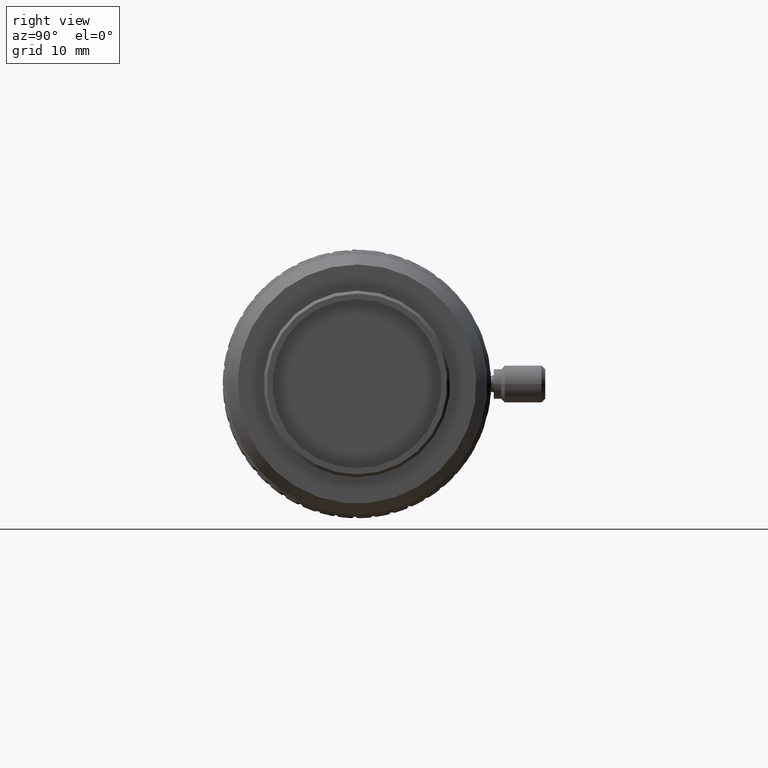
[diagram: clean part render]
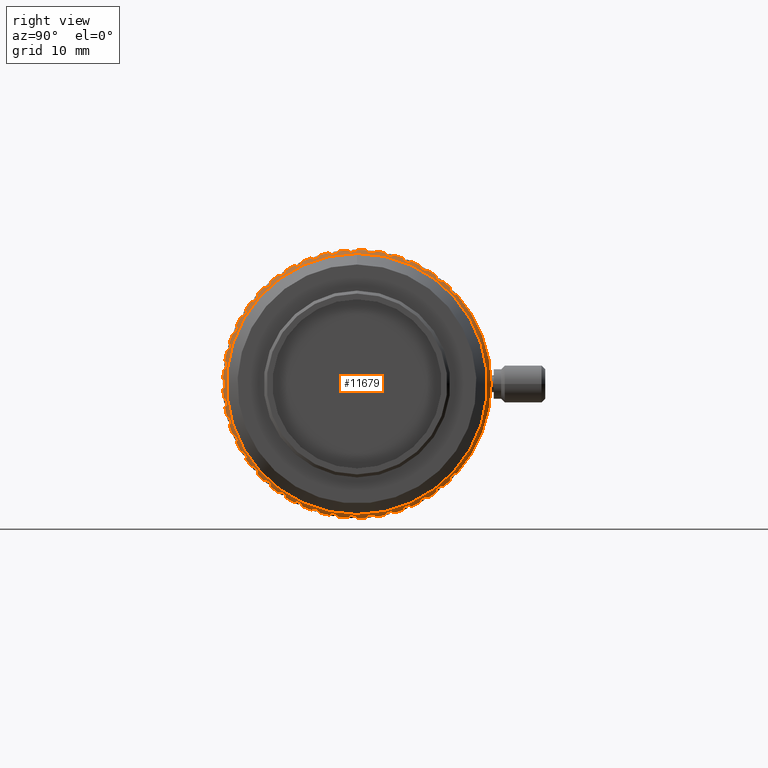
[diagram: same view with one face highlighted and labeled with its STEP entity id]
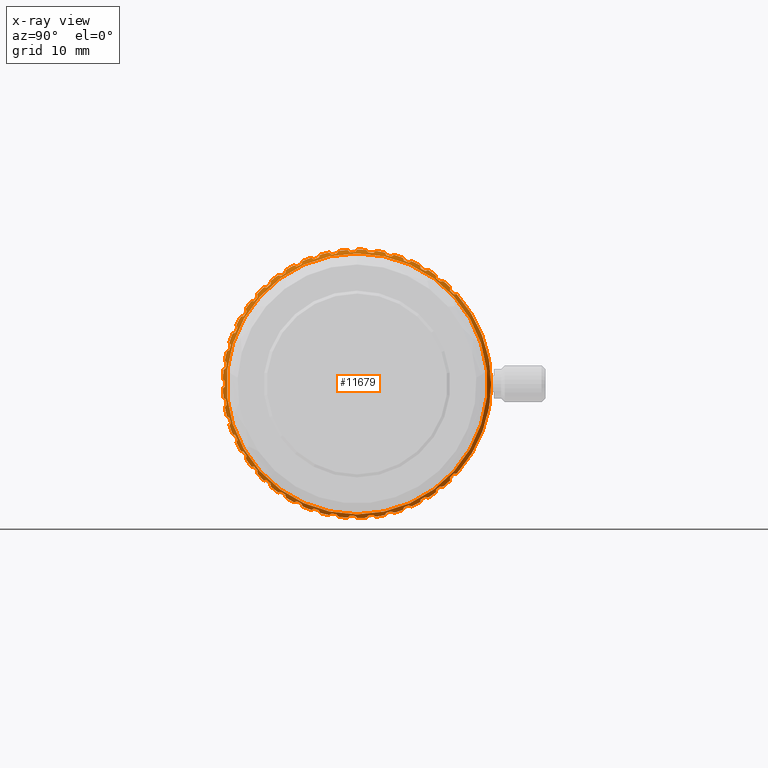
[diagram: x-ray of the same camera — body ghosted, the highlighted face saturated]
A machine part, right view. The second image highlights one B-rep face of the part: STEP entity #11679.
The next image is the same camera in x-ray: the body ghosted, the highlighted face saturated — about 0% of this face is hidden behind the body in this view.
In plain terms, the highlighted conical surface has half-angle 45 deg.
Its self-contained STEP definition (entity closure, byte-faithful):
#33=CONICAL_SURFACE('',#12679,18.25,0.785398163397421);
#46=B_SPLINE_CURVE_WITH_KNOTS('',3,(#15877,#15878,#15879,#15880),
 .UNSPECIFIED.,.F.,.F.,(4,4),(3.10377992888731E-7,0.000509285871239953),
 .UNSPECIFIED.);
#48=B_SPLINE_CURVE_WITH_KNOTS('',3,(#15904,#15905,#15906,#15907),
 .UNSPECIFIED.,.F.,.F.,(4,4),(2.83394854275026E-7,0.000509258888101372),
 .UNSPECIFIED.);
#50=B_SPLINE_CURVE_WITH_KNOTS('',3,(#15931,#15932,#15933,#15934),
 .UNSPECIFIED.,.F.,.F.,(4,4),(2.65482120810764E-7,0.000509240975367965),
 .UNSPECIFIED.);
#52=B_SPLINE_CURVE_WITH_KNOTS('',3,(#15958,#15959,#15960,#15961),
 .UNSPECIFIED.,.F.,.F.,(4,4),(2.54355642160378E-7,0.000509229848889212),
 .UNSPECIFIED.);
#54=B_SPLINE_CURVE_WITH_KNOTS('',3,(#15985,#15986,#15987,#15988),
 .UNSPECIFIED.,.F.,.F.,(4,4),(2.48771574221049E-7,0.000509224264821304),
 .UNSPECIFIED.);
#56=B_SPLINE_CURVE_WITH_KNOTS('',3,(#16012,#16013,#16014,#16015),
 .UNSPECIFIED.,.F.,.F.,(4,4),(2.48153698989541E-7,0.000509223646946086),
 .UNSPECIFIED.);
#58=B_SPLINE_CURVE_WITH_KNOTS('',3,(#16039,#16040,#16041,#16042),
 .UNSPECIFIED.,.F.,.F.,(4,4),(2.52440179216969E-7,0.000509227933426303),
 .UNSPECIFIED.);
#60=B_SPLINE_CURVE_WITH_KNOTS('',3,(#16066,#16067,#16068,#16069),
 .UNSPECIFIED.,.F.,.F.,(4,4),(2.62067864146015E-7,0.000509237561111277),
 .UNSPECIFIED.);
#62=B_SPLINE_CURVE_WITH_KNOTS('',3,(#16093,#16094,#16095,#16096),
 .UNSPECIFIED.,.F.,.F.,(4,4),(2.78086291065974E-7,0.000509253579538123),
 .UNSPECIFIED.);
#64=B_SPLINE_CURVE_WITH_KNOTS('',3,(#16120,#16121,#16122,#16123),
 .UNSPECIFIED.,.F.,.F.,(4,4),(3.02460715910631E-7,0.000509277953963033),
 .UNSPECIFIED.);
#66=B_SPLINE_CURVE_WITH_KNOTS('',3,(#16147,#16148,#16149,#16150),
 .UNSPECIFIED.,.F.,.F.,(4,4),(3.38745222713602E-7,0.000509314238469728),
 .UNSPECIFIED.);
#68=B_SPLINE_CURVE_WITH_KNOTS('',3,(#16174,#16175,#16176,#16177),
 .UNSPECIFIED.,.F.,.F.,(4,4),(3.18966401492404E-7,0.000509294459648496),
 .UNSPECIFIED.);
#70=B_SPLINE_CURVE_WITH_KNOTS('',3,(#16201,#16202,#16203,#16204),
 .UNSPECIFIED.,.F.,.F.,(4,4),(2.89169335904197E-7,0.000509264662583),
 .UNSPECIFIED.);
#72=B_SPLINE_CURVE_WITH_KNOTS('',3,(#16228,#16229,#16230,#16231),
 .UNSPECIFIED.,.F.,.F.,(4,4),(2.69256811224499E-7,0.00050924475005826),
 .UNSPECIFIED.);
#74=B_SPLINE_CURVE_WITH_KNOTS('',3,(#16255,#16256,#16257,#16258),
 .UNSPECIFIED.,.F.,.F.,(4,4),(2.56582356831962E-7,0.000509232075603906),
 .UNSPECIFIED.);
#76=B_SPLINE_CURVE_WITH_KNOTS('',3,(#16282,#16283,#16284,#16285),
 .UNSPECIFIED.,.F.,.F.,(4,4),(2.49688921492227E-7,0.000509225182168545),
 .UNSPECIFIED.);
#78=B_SPLINE_CURVE_WITH_KNOTS('',3,(#16309,#16310,#16311,#16312),
 .UNSPECIFIED.,.F.,.F.,(4,4),(2.47854187476222E-7,0.000509223347434583),
 .UNSPECIFIED.);
#80=B_SPLINE_CURVE_WITH_KNOTS('',3,(#16336,#16337,#16338,#16339),
 .UNSPECIFIED.,.F.,.F.,(4,4),(2.4785701008164E-7,0.000509223350257167),
 .UNSPECIFIED.);
#82=B_SPLINE_CURVE_WITH_KNOTS('',3,(#16363,#16364,#16365,#16366),
 .UNSPECIFIED.,.F.,.F.,(4,4),(2.49668920199083E-7,0.000509225162167285),
 .UNSPECIFIED.);
#84=B_SPLINE_CURVE_WITH_KNOTS('',3,(#16390,#16391,#16392,#16393),
 .UNSPECIFIED.,.F.,.F.,(4,4),(2.56537504021602E-7,0.000509232030751095),
 .UNSPECIFIED.);
#86=B_SPLINE_CURVE_WITH_KNOTS('',3,(#16417,#16418,#16419,#16420),
 .UNSPECIFIED.,.F.,.F.,(4,4),(2.69182245950366E-7,0.000509244675492987),
 .UNSPECIFIED.);
#88=B_SPLINE_CURVE_WITH_KNOTS('',3,(#16444,#16445,#16446,#16447),
 .UNSPECIFIED.,.F.,.F.,(4,4),(2.89055974529706E-7,0.000509264549221666),
 .UNSPECIFIED.);
#90=B_SPLINE_CURVE_WITH_KNOTS('',3,(#16471,#16472,#16473,#16474),
 .UNSPECIFIED.,.F.,.F.,(4,4),(3.18797865295738E-7,0.000509294291112444),
 .UNSPECIFIED.);
#92=B_SPLINE_CURVE_WITH_KNOTS('',3,(#16498,#16499,#16500,#16501),
 .UNSPECIFIED.,.F.,.F.,(4,4),(3.38951476362886E-7,0.000509314444723393),
 .UNSPECIFIED.);
#94=B_SPLINE_CURVE_WITH_KNOTS('',3,(#16525,#16526,#16527,#16528),
 .UNSPECIFIED.,.F.,.F.,(4,4),(3.02598961327175E-7,0.000509278092208383),
 .UNSPECIFIED.);
#96=B_SPLINE_CURVE_WITH_KNOTS('',3,(#16552,#16553,#16554,#16555),
 .UNSPECIFIED.,.F.,.F.,(4,4),(2.78178764395996E-7,0.000509253672011471),
 .UNSPECIFIED.);
#98=B_SPLINE_CURVE_WITH_KNOTS('',3,(#16579,#16580,#16581,#16582),
 .UNSPECIFIED.,.F.,.F.,(4,4),(2.62126747930573E-7,0.000509237619994963),
 .UNSPECIFIED.);
#100=B_SPLINE_CURVE_WITH_KNOTS('',3,(#16606,#16607,#16608,#16609),
 .UNSPECIFIED.,.F.,.F.,(4,4),(2.52472195961121E-7,0.000509227965443025),
 .UNSPECIFIED.);
#102=B_SPLINE_CURVE_WITH_KNOTS('',3,(#16633,#16634,#16635,#16636),
 .UNSPECIFIED.,.F.,.F.,(4,4),(2.48162184008011E-7,0.000509223655431096),
 .UNSPECIFIED.);
#104=B_SPLINE_CURVE_WITH_KNOTS('',3,(#16660,#16661,#16662,#16663),
 .UNSPECIFIED.,.F.,.F.,(4,4),(2.48757374810416E-7,0.000509224250621849),
 .UNSPECIFIED.);
#106=B_SPLINE_CURVE_WITH_KNOTS('',3,(#16687,#16688,#16689,#16690),
 .UNSPECIFIED.,.F.,.F.,(4,4),(2.54317331824547E-7,0.000509229810578897),
 .UNSPECIFIED.);
#108=B_SPLINE_CURVE_WITH_KNOTS('',3,(#16714,#16715,#16716,#16717),
 .UNSPECIFIED.,.F.,.F.,(4,4),(2.65415635227557E-7,0.000509240908882321),
 .UNSPECIFIED.);
#110=B_SPLINE_CURVE_WITH_KNOTS('',3,(#16741,#16742,#16743,#16744),
 .UNSPECIFIED.,.F.,.F.,(4,4),(2.83292365467922E-7,0.00050925878561254),
 .UNSPECIFIED.);
#112=B_SPLINE_CURVE_WITH_KNOTS('',3,(#16768,#16769,#16770,#16771),
 .UNSPECIFIED.,.F.,.F.,(4,4),(3.10225386638885E-7,0.000509285718633742),
 .UNSPECIFIED.);
#114=B_SPLINE_CURVE_WITH_KNOTS('',3,(#16795,#16796,#16797,#16798),
 .UNSPECIFIED.,.F.,.F.,(4,4),(3.53404497635346E-7,0.000509328897744711),
 .UNSPECIFIED.);
#2503=ORIENTED_EDGE('',*,*,#4836,.T.);
#2504=ORIENTED_EDGE('',*,*,#3773,.F.);
#2505=ORIENTED_EDGE('',*,*,#4837,.F.);
#2506=ORIENTED_EDGE('',*,*,#3779,.F.);
#2507=ORIENTED_EDGE('',*,*,#3786,.F.);
#2508=ORIENTED_EDGE('',*,*,#3783,.F.);
#2509=ORIENTED_EDGE('',*,*,#4838,.F.);
#2510=ORIENTED_EDGE('',*,*,#3789,.F.);
#2511=ORIENTED_EDGE('',*,*,#3796,.F.);
#2512=ORIENTED_EDGE('',*,*,#3793,.F.);
#2513=ORIENTED_EDGE('',*,*,#4839,.F.);
#2514=ORIENTED_EDGE('',*,*,#3799,.F.);
#2515=ORIENTED_EDGE('',*,*,#3806,.F.);
#2516=ORIENTED_EDGE('',*,*,#3803,.F.);
#2517=ORIENTED_EDGE('',*,*,#4840,.F.);
#2518=ORIENTED_EDGE('',*,*,#3809,.F.);
#2519=ORIENTED_EDGE('',*,*,#3816,.F.);
#2520=ORIENTED_EDGE('',*,*,#3813,.F.);
#2521=ORIENTED_EDGE('',*,*,#4841,.F.);
#2522=ORIENTED_EDGE('',*,*,#3819,.F.);
#2523=ORIENTED_EDGE('',*,*,#3826,.F.);
#2524=ORIENTED_EDGE('',*,*,#3823,.F.);
#2525=ORIENTED_EDGE('',*,*,#4842,.F.);
#2526=ORIENTED_EDGE('',*,*,#3829,.F.);
#2527=ORIENTED_EDGE('',*,*,#3836,.F.);
#2528=ORIENTED_EDGE('',*,*,#3833,.F.);
#2529=ORIENTED_EDGE('',*,*,#4843,.F.);
#2530=ORIENTED_EDGE('',*,*,#3839,.F.);
#2531=ORIENTED_EDGE('',*,*,#3846,.F.);
#2532=ORIENTED_EDGE('',*,*,#3843,.F.);
#2533=ORIENTED_EDGE('',*,*,#4844,.F.);
#2534=ORIENTED_EDGE('',*,*,#3849,.F.);
#2535=ORIENTED_EDGE('',*,*,#3856,.F.);
#2536=ORIENTED_EDGE('',*,*,#3853,.F.);
#2537=ORIENTED_EDGE('',*,*,#4845,.F.);
#2538=ORIENTED_EDGE('',*,*,#3859,.F.);
#2539=ORIENTED_EDGE('',*,*,#3866,.F.);
#2540=ORIENTED_EDGE('',*,*,#3863,.F.);
#2541=ORIENTED_EDGE('',*,*,#4846,.F.);
#2542=ORIENTED_EDGE('',*,*,#3869,.F.);
#2543=ORIENTED_EDGE('',*,*,#3876,.F.);
#2544=ORIENTED_EDGE('',*,*,#3873,.F.);
#2545=ORIENTED_EDGE('',*,*,#4847,.F.);
#2546=ORIENTED_EDGE('',*,*,#3879,.F.);
#2547=ORIENTED_EDGE('',*,*,#3886,.F.);
#2548=ORIENTED_EDGE('',*,*,#3883,.F.);
#2549=ORIENTED_EDGE('',*,*,#4848,.F.);
#2550=ORIENTED_EDGE('',*,*,#3889,.F.);
#2551=ORIENTED_EDGE('',*,*,#3896,.F.);
#2552=ORIENTED_EDGE('',*,*,#3893,.F.);
#2553=ORIENTED_EDGE('',*,*,#4849,.F.);
#2554=ORIENTED_EDGE('',*,*,#3899,.F.);
#2555=ORIENTED_EDGE('',*,*,#3906,.F.);
#2556=ORIENTED_EDGE('',*,*,#3903,.F.);
#2557=ORIENTED_EDGE('',*,*,#4850,.F.);
#2558=ORIENTED_EDGE('',*,*,#3909,.F.);
#2559=ORIENTED_EDGE('',*,*,#3916,.F.);
#2560=ORIENTED_EDGE('',*,*,#3913,.F.);
#2561=ORIENTED_EDGE('',*,*,#4851,.F.);
#2562=ORIENTED_EDGE('',*,*,#3919,.F.);
#2563=ORIENTED_EDGE('',*,*,#3926,.F.);
#2564=ORIENTED_EDGE('',*,*,#3923,.F.);
#2565=ORIENTED_EDGE('',*,*,#4852,.F.);
#2566=ORIENTED_EDGE('',*,*,#3929,.F.);
#2567=ORIENTED_EDGE('',*,*,#3936,.F.);
#2568=ORIENTED_EDGE('',*,*,#3933,.F.);
#2569=ORIENTED_EDGE('',*,*,#4853,.F.);
#2570=ORIENTED_EDGE('',*,*,#3939,.F.);
#2571=ORIENTED_EDGE('',*,*,#3946,.F.);
#2572=ORIENTED_EDGE('',*,*,#3943,.F.);
#2573=ORIENTED_EDGE('',*,*,#4854,.F.);
#2574=ORIENTED_EDGE('',*,*,#3949,.F.);
#2575=ORIENTED_EDGE('',*,*,#3956,.F.);
#2576=ORIENTED_EDGE('',*,*,#3953,.F.);
#2577=ORIENTED_EDGE('',*,*,#4855,.F.);
#2578=ORIENTED_EDGE('',*,*,#3959,.F.);
#2579=ORIENTED_EDGE('',*,*,#3966,.F.);
#2580=ORIENTED_EDGE('',*,*,#3963,.F.);
#2581=ORIENTED_EDGE('',*,*,#4856,.F.);
#2582=ORIENTED_EDGE('',*,*,#3969,.F.);
#2583=ORIENTED_EDGE('',*,*,#3976,.F.);
#2584=ORIENTED_EDGE('',*,*,#3973,.F.);
#2585=ORIENTED_EDGE('',*,*,#4857,.F.);
#2586=ORIENTED_EDGE('',*,*,#3979,.F.);
#2587=ORIENTED_EDGE('',*,*,#3986,.F.);
#2588=ORIENTED_EDGE('',*,*,#3983,.F.);
#2589=ORIENTED_EDGE('',*,*,#4858,.F.);
#2590=ORIENTED_EDGE('',*,*,#3989,.F.);
#2591=ORIENTED_EDGE('',*,*,#3996,.F.);
#2592=ORIENTED_EDGE('',*,*,#3993,.F.);
#2593=ORIENTED_EDGE('',*,*,#4859,.F.);
#2594=ORIENTED_EDGE('',*,*,#3999,.F.);
#2595=ORIENTED_EDGE('',*,*,#4006,.F.);
#2596=ORIENTED_EDGE('',*,*,#4003,.F.);
#2597=ORIENTED_EDGE('',*,*,#4860,.F.);
#2598=ORIENTED_EDGE('',*,*,#4009,.F.);
#2599=ORIENTED_EDGE('',*,*,#4016,.F.);
#2600=ORIENTED_EDGE('',*,*,#4013,.F.);
#2601=ORIENTED_EDGE('',*,*,#4861,.F.);
#2602=ORIENTED_EDGE('',*,*,#4019,.F.);
#2603=ORIENTED_EDGE('',*,*,#4026,.F.);
#2604=ORIENTED_EDGE('',*,*,#4023,.F.);
#2605=ORIENTED_EDGE('',*,*,#4862,.F.);
#2606=ORIENTED_EDGE('',*,*,#4029,.F.);
#2607=ORIENTED_EDGE('',*,*,#4036,.F.);
#2608=ORIENTED_EDGE('',*,*,#4033,.F.);
#2609=ORIENTED_EDGE('',*,*,#4863,.F.);
#2610=ORIENTED_EDGE('',*,*,#4039,.F.);
#2611=ORIENTED_EDGE('',*,*,#4046,.F.);
#2612=ORIENTED_EDGE('',*,*,#4043,.F.);
#2613=ORIENTED_EDGE('',*,*,#4864,.F.);
#2614=ORIENTED_EDGE('',*,*,#4049,.F.);
#2615=ORIENTED_EDGE('',*,*,#4056,.F.);
#2616=ORIENTED_EDGE('',*,*,#4053,.F.);
#2617=ORIENTED_EDGE('',*,*,#4865,.F.);
#2618=ORIENTED_EDGE('',*,*,#4059,.F.);
#2619=ORIENTED_EDGE('',*,*,#4066,.F.);
#2620=ORIENTED_EDGE('',*,*,#4063,.F.);
#2621=ORIENTED_EDGE('',*,*,#4866,.F.);
#2622=ORIENTED_EDGE('',*,*,#4069,.F.);
#2623=ORIENTED_EDGE('',*,*,#4076,.F.);
#2624=ORIENTED_EDGE('',*,*,#4073,.F.);
#2625=ORIENTED_EDGE('',*,*,#4867,.F.);
#2626=ORIENTED_EDGE('',*,*,#4079,.F.);
#2627=ORIENTED_EDGE('',*,*,#4086,.F.);
#2628=ORIENTED_EDGE('',*,*,#4083,.F.);
#2629=ORIENTED_EDGE('',*,*,#4868,.F.);
#2630=ORIENTED_EDGE('',*,*,#4089,.F.);
#2631=ORIENTED_EDGE('',*,*,#4096,.F.);
#2632=ORIENTED_EDGE('',*,*,#4093,.F.);
#2633=ORIENTED_EDGE('',*,*,#4869,.F.);
#2634=ORIENTED_EDGE('',*,*,#4099,.F.);
#2635=ORIENTED_EDGE('',*,*,#4106,.F.);
#2636=ORIENTED_EDGE('',*,*,#4103,.F.);
#2637=ORIENTED_EDGE('',*,*,#4870,.F.);
#2638=ORIENTED_EDGE('',*,*,#4109,.F.);
#2639=ORIENTED_EDGE('',*,*,#4116,.F.);
#2640=ORIENTED_EDGE('',*,*,#4113,.F.);
#2641=ORIENTED_EDGE('',*,*,#4871,.F.);
#2642=ORIENTED_EDGE('',*,*,#3769,.F.);
#2643=ORIENTED_EDGE('',*,*,#3776,.F.);
#3769=EDGE_CURVE('',#5059,#5060,#5939,.T.);
#3773=EDGE_CURVE('',#5063,#5064,#46,.T.);
#3776=EDGE_CURVE('',#5064,#5059,#5941,.T.);
#3779=EDGE_CURVE('',#5067,#5068,#5943,.T.);
#3783=EDGE_CURVE('',#5071,#5072,#48,.T.);
#3786=EDGE_CURVE('',#5072,#5067,#5945,.T.);
#3789=EDGE_CURVE('',#5075,#5076,#5947,.T.);
#3793=EDGE_CURVE('',#5079,#5080,#50,.T.);
#3796=EDGE_CURVE('',#5080,#5075,#5949,.T.);
#3799=EDGE_CURVE('',#5083,#5084,#5951,.T.);
#3803=EDGE_CURVE('',#5087,#5088,#52,.T.);
#3806=EDGE_CURVE('',#5088,#5083,#5953,.T.);
#3809=EDGE_CURVE('',#5091,#5092,#5955,.T.);
#3813=EDGE_CURVE('',#5095,#5096,#54,.T.);
#3816=EDGE_CURVE('',#5096,#5091,#5957,.T.);
#3819=EDGE_CURVE('',#5099,#5100,#5959,.T.);
#3823=EDGE_CURVE('',#5103,#5104,#56,.T.);
#3826=EDGE_CURVE('',#5104,#5099,#5961,.T.);
#3829=EDGE_CURVE('',#5107,#5108,#5963,.T.);
#3833=EDGE_CURVE('',#5111,#5112,#58,.T.);
#3836=EDGE_CURVE('',#5112,#5107,#5965,.T.);
#3839=EDGE_CURVE('',#5115,#5116,#5967,.T.);
#3843=EDGE_CURVE('',#5119,#5120,#60,.T.);
#3846=EDGE_CURVE('',#5120,#5115,#5969,.T.);
#3849=EDGE_CURVE('',#5123,#5124,#5971,.T.);
#3853=EDGE_CURVE('',#5127,#5128,#62,.T.);
#3856=EDGE_CURVE('',#5128,#5123,#5973,.T.);
#3859=EDGE_CURVE('',#5131,#5132,#5975,.T.);
#3863=EDGE_CURVE('',#5135,#5136,#64,.T.);
#3866=EDGE_CURVE('',#5136,#5131,#5977,.T.);
#3869=EDGE_CURVE('',#5139,#5140,#5979,.T.);
#3873=EDGE_CURVE('',#5143,#5144,#66,.T.);
#3876=EDGE_CURVE('',#5144,#5139,#5981,.T.);
#3879=EDGE_CURVE('',#5147,#5148,#5983,.T.);
#3883=EDGE_CURVE('',#5151,#5152,#68,.T.);
#3886=EDGE_CURVE('',#5152,#5147,#5985,.T.);
#3889=EDGE_CURVE('',#5155,#5156,#5987,.T.);
#3893=EDGE_CURVE('',#5159,#5160,#70,.T.);
#3896=EDGE_CURVE('',#5160,#5155,#5989,.T.);
#3899=EDGE_CURVE('',#5163,#5164,#5991,.T.);
#3903=EDGE_CURVE('',#5167,#5168,#72,.T.);
#3906=EDGE_CURVE('',#5168,#5163,#5993,.T.);
#3909=EDGE_CURVE('',#5171,#5172,#5995,.T.);
#3913=EDGE_CURVE('',#5175,#5176,#74,.T.);
#3916=EDGE_CURVE('',#5176,#5171,#5997,.T.);
#3919=EDGE_CURVE('',#5179,#5180,#5999,.T.);
#3923=EDGE_CURVE('',#5183,#5184,#76,.T.);
#3926=EDGE_CURVE('',#5184,#5179,#6001,.T.);
#3929=EDGE_CURVE('',#5187,#5188,#6003,.T.);
#3933=EDGE_CURVE('',#5191,#5192,#78,.T.);
#3936=EDGE_CURVE('',#5192,#5187,#6005,.T.);
#3939=EDGE_CURVE('',#5195,#5196,#6007,.T.);
#3943=EDGE_CURVE('',#5199,#5200,#80,.T.);
#3946=EDGE_CURVE('',#5200,#5195,#6009,.T.);
#3949=EDGE_CURVE('',#5203,#5204,#6011,.T.);
#3953=EDGE_CURVE('',#5207,#5208,#82,.T.);
#3956=EDGE_CURVE('',#5208,#5203,#6013,.T.);
#3959=EDGE_CURVE('',#5211,#5212,#6015,.T.);
#3963=EDGE_CURVE('',#5215,#5216,#84,.T.);
#3966=EDGE_CURVE('',#5216,#5211,#6017,.T.);
#3969=EDGE_CURVE('',#5219,#5220,#6019,.T.);
#3973=EDGE_CURVE('',#5223,#5224,#86,.T.);
#3976=EDGE_CURVE('',#5224,#5219,#6021,.T.);
#3979=EDGE_CURVE('',#5227,#5228,#6023,.T.);
#3983=EDGE_CURVE('',#5231,#5232,#88,.T.);
#3986=EDGE_CURVE('',#5232,#5227,#6025,.T.);
#3989=EDGE_CURVE('',#5235,#5236,#6027,.T.);
#3993=EDGE_CURVE('',#5239,#5240,#90,.T.);
#3996=EDGE_CURVE('',#5240,#5235,#6029,.T.);
#3999=EDGE_CURVE('',#5243,#5244,#6031,.T.);
#4003=EDGE_CURVE('',#5247,#5248,#92,.T.);
#4006=EDGE_CURVE('',#5248,#5243,#6033,.T.);
#4009=EDGE_CURVE('',#5251,#5252,#6035,.T.);
#4013=EDGE_CURVE('',#5255,#5256,#94,.T.);
#4016=EDGE_CURVE('',#5256,#5251,#6037,.T.);
#4019=EDGE_CURVE('',#5259,#5260,#6039,.T.);
#4023=EDGE_CURVE('',#5263,#5264,#96,.T.);
#4026=EDGE_CURVE('',#5264,#5259,#6041,.T.);
#4029=EDGE_CURVE('',#5267,#5268,#6043,.T.);
#4033=EDGE_CURVE('',#5271,#5272,#98,.T.);
#4036=EDGE_CURVE('',#5272,#5267,#6045,.T.);
#4039=EDGE_CURVE('',#5275,#5276,#6047,.T.);
#4043=EDGE_CURVE('',#5279,#5280,#100,.T.);
#4046=EDGE_CURVE('',#5280,#5275,#6049,.T.);
#4049=EDGE_CURVE('',#5283,#5284,#6051,.T.);
#4053=EDGE_CURVE('',#5287,#5288,#102,.T.);
#4056=EDGE_CURVE('',#5288,#5283,#6053,.T.);
#4059=EDGE_CURVE('',#5291,#5292,#6055,.T.);
#4063=EDGE_CURVE('',#5295,#5296,#104,.T.);
#4066=EDGE_CURVE('',#5296,#5291,#6057,.T.);
#4069=EDGE_CURVE('',#5299,#5300,#6059,.T.);
#4073=EDGE_CURVE('',#5303,#5304,#106,.T.);
#4076=EDGE_CURVE('',#5304,#5299,#6061,.T.);
#4079=EDGE_CURVE('',#5307,#5308,#6063,.T.);
#4083=EDGE_CURVE('',#5311,#5312,#108,.T.);
#4086=EDGE_CURVE('',#5312,#5307,#6065,.T.);
#4089=EDGE_CURVE('',#5315,#5316,#6067,.T.);
#4093=EDGE_CURVE('',#5319,#5320,#110,.T.);
#4096=EDGE_CURVE('',#5320,#5315,#6069,.T.);
#4099=EDGE_CURVE('',#5323,#5324,#6071,.T.);
#4103=EDGE_CURVE('',#5327,#5328,#112,.T.);
#4106=EDGE_CURVE('',#5328,#5323,#6073,.T.);
#4109=EDGE_CURVE('',#5331,#5332,#6075,.T.);
#4113=EDGE_CURVE('',#5335,#5336,#114,.T.);
#4116=EDGE_CURVE('',#5336,#5331,#6077,.T.);
#4836=EDGE_CURVE('',#5919,#5919,#6459,.T.);
#4837=EDGE_CURVE('',#5068,#5063,#6460,.T.);
#4838=EDGE_CURVE('',#5076,#5071,#6461,.T.);
#4839=EDGE_CURVE('',#5084,#5079,#6462,.T.);
#4840=EDGE_CURVE('',#5092,#5087,#6463,.T.);
#4841=EDGE_CURVE('',#5100,#5095,#6464,.T.);
#4842=EDGE_CURVE('',#5108,#5103,#6465,.T.);
#4843=EDGE_CURVE('',#5116,#5111,#6466,.T.);
#4844=EDGE_CURVE('',#5124,#5119,#6467,.T.);
#4845=EDGE_CURVE('',#5132,#5127,#6468,.T.);
#4846=EDGE_CURVE('',#5140,#5135,#6469,.T.);
#4847=EDGE_CURVE('',#5148,#5143,#6470,.T.);
#4848=EDGE_CURVE('',#5156,#5151,#6471,.T.);
#4849=EDGE_CURVE('',#5164,#5159,#6472,.T.);
#4850=EDGE_CURVE('',#5172,#5167,#6473,.T.);
#4851=EDGE_CURVE('',#5180,#5175,#6474,.T.);
#4852=EDGE_CURVE('',#5188,#5183,#6475,.T.);
#4853=EDGE_CURVE('',#5196,#5191,#6476,.T.);
#4854=EDGE_CURVE('',#5204,#5199,#6477,.T.);
#4855=EDGE_CURVE('',#5212,#5207,#6478,.T.);
#4856=EDGE_CURVE('',#5220,#5215,#6479,.T.);
#4857=EDGE_CURVE('',#5228,#5223,#6480,.T.);
#4858=EDGE_CURVE('',#5236,#5231,#6481,.T.);
#4859=EDGE_CURVE('',#5244,#5239,#6482,.T.);
#4860=EDGE_CURVE('',#5252,#5247,#6483,.T.);
#4861=EDGE_CURVE('',#5260,#5255,#6484,.T.);
#4862=EDGE_CURVE('',#5268,#5263,#6485,.T.);
#4863=EDGE_CURVE('',#5276,#5271,#6486,.T.);
#4864=EDGE_CURVE('',#5284,#5279,#6487,.T.);
#4865=EDGE_CURVE('',#5292,#5287,#6488,.T.);
#4866=EDGE_CURVE('',#5300,#5295,#6489,.T.);
#4867=EDGE_CURVE('',#5308,#5303,#6490,.T.);
#4868=EDGE_CURVE('',#5316,#5311,#6491,.T.);
#4869=EDGE_CURVE('',#5324,#5319,#6492,.T.);
#4870=EDGE_CURVE('',#5332,#5327,#6493,.T.);
#4871=EDGE_CURVE('',#5060,#5335,#6494,.T.);
#5059=VERTEX_POINT('',#15864);
#5060=VERTEX_POINT('',#15866);
#5063=VERTEX_POINT('',#15876);
#5064=VERTEX_POINT('',#15881);
#5067=VERTEX_POINT('',#15891);
#5068=VERTEX_POINT('',#15893);
#5071=VERTEX_POINT('',#15903);
#5072=VERTEX_POINT('',#15908);
#5075=VERTEX_POINT('',#15918);
#5076=VERTEX_POINT('',#15920);
#5079=VERTEX_POINT('',#15930);
#5080=VERTEX_POINT('',#15935);
#5083=VERTEX_POINT('',#15945);
#5084=VERTEX_POINT('',#15947);
#5087=VERTEX_POINT('',#15957);
#5088=VERTEX_POINT('',#15962);
#5091=VERTEX_POINT('',#15972);
#5092=VERTEX_POINT('',#15974);
#5095=VERTEX_POINT('',#15984);
#5096=VERTEX_POINT('',#15989);
#5099=VERTEX_POINT('',#15999);
#5100=VERTEX_POINT('',#16001);
#5103=VERTEX_POINT('',#16011);
#5104=VERTEX_POINT('',#16016);
#5107=VERTEX_POINT('',#16026);
#5108=VERTEX_POINT('',#16028);
#5111=VERTEX_POINT('',#16038);
#5112=VERTEX_POINT('',#16043);
#5115=VERTEX_POINT('',#16053);
#5116=VERTEX_POINT('',#16055);
#5119=VERTEX_POINT('',#16065);
#5120=VERTEX_POINT('',#16070);
#5123=VERTEX_POINT('',#16080);
#5124=VERTEX_POINT('',#16082);
#5127=VERTEX_POINT('',#16092);
#5128=VERTEX_POINT('',#16097);
#5131=VERTEX_POINT('',#16107);
#5132=VERTEX_POINT('',#16109);
#5135=VERTEX_POINT('',#16119);
#5136=VERTEX_POINT('',#16124);
#5139=VERTEX_POINT('',#16134);
#5140=VERTEX_POINT('',#16136);
#5143=VERTEX_POINT('',#16146);
#5144=VERTEX_POINT('',#16151);
#5147=VERTEX_POINT('',#16161);
#5148=VERTEX_POINT('',#16163);
#5151=VERTEX_POINT('',#16173);
#5152=VERTEX_POINT('',#16178);
#5155=VERTEX_POINT('',#16188);
#5156=VERTEX_POINT('',#16190);
#5159=VERTEX_POINT('',#16200);
#5160=VERTEX_POINT('',#16205);
#5163=VERTEX_POINT('',#16215);
#5164=VERTEX_POINT('',#16217);
#5167=VERTEX_POINT('',#16227);
#5168=VERTEX_POINT('',#16232);
#5171=VERTEX_POINT('',#16242);
#5172=VERTEX_POINT('',#16244);
#5175=VERTEX_POINT('',#16254);
#5176=VERTEX_POINT('',#16259);
#5179=VERTEX_POINT('',#16269);
#5180=VERTEX_POINT('',#16271);
#5183=VERTEX_POINT('',#16281);
#5184=VERTEX_POINT('',#16286);
#5187=VERTEX_POINT('',#16296);
#5188=VERTEX_POINT('',#16298);
#5191=VERTEX_POINT('',#16308);
#5192=VERTEX_POINT('',#16313);
#5195=VERTEX_POINT('',#16323);
#5196=VERTEX_POINT('',#16325);
#5199=VERTEX_POINT('',#16335);
#5200=VERTEX_POINT('',#16340);
#5203=VERTEX_POINT('',#16350);
#5204=VERTEX_POINT('',#16352);
#5207=VERTEX_POINT('',#16362);
#5208=VERTEX_POINT('',#16367);
#5211=VERTEX_POINT('',#16377);
#5212=VERTEX_POINT('',#16379);
#5215=VERTEX_POINT('',#16389);
#5216=VERTEX_POINT('',#16394);
#5219=VERTEX_POINT('',#16404);
#5220=VERTEX_POINT('',#16406);
#5223=VERTEX_POINT('',#16416);
#5224=VERTEX_POINT('',#16421);
#5227=VERTEX_POINT('',#16431);
#5228=VERTEX_POINT('',#16433);
#5231=VERTEX_POINT('',#16443);
#5232=VERTEX_POINT('',#16448);
#5235=VERTEX_POINT('',#16458);
#5236=VERTEX_POINT('',#16460);
#5239=VERTEX_POINT('',#16470);
#5240=VERTEX_POINT('',#16475);
#5243=VERTEX_POINT('',#16485);
#5244=VERTEX_POINT('',#16487);
#5247=VERTEX_POINT('',#16497);
#5248=VERTEX_POINT('',#16502);
#5251=VERTEX_POINT('',#16512);
#5252=VERTEX_POINT('',#16514);
#5255=VERTEX_POINT('',#16524);
#5256=VERTEX_POINT('',#16529);
#5259=VERTEX_POINT('',#16539);
#5260=VERTEX_POINT('',#16541);
#5263=VERTEX_POINT('',#16551);
#5264=VERTEX_POINT('',#16556);
#5267=VERTEX_POINT('',#16566);
#5268=VERTEX_POINT('',#16568);
#5271=VERTEX_POINT('',#16578);
#5272=VERTEX_POINT('',#16583);
#5275=VERTEX_POINT('',#16593);
#5276=VERTEX_POINT('',#16595);
#5279=VERTEX_POINT('',#16605);
#5280=VERTEX_POINT('',#16610);
#5283=VERTEX_POINT('',#16620);
#5284=VERTEX_POINT('',#16622);
#5287=VERTEX_POINT('',#16632);
#5288=VERTEX_POINT('',#16637);
#5291=VERTEX_POINT('',#16647);
#5292=VERTEX_POINT('',#16649);
#5295=VERTEX_POINT('',#16659);
#5296=VERTEX_POINT('',#16664);
#5299=VERTEX_POINT('',#16674);
#5300=VERTEX_POINT('',#16676);
#5303=VERTEX_POINT('',#16686);
#5304=VERTEX_POINT('',#16691);
#5307=VERTEX_POINT('',#16701);
#5308=VERTEX_POINT('',#16703);
#5311=VERTEX_POINT('',#16713);
#5312=VERTEX_POINT('',#16718);
#5315=VERTEX_POINT('',#16728);
#5316=VERTEX_POINT('',#16730);
#5319=VERTEX_POINT('',#16740);
#5320=VERTEX_POINT('',#16745);
#5323=VERTEX_POINT('',#16755);
#5324=VERTEX_POINT('',#16757);
#5327=VERTEX_POINT('',#16767);
#5328=VERTEX_POINT('',#16772);
#5331=VERTEX_POINT('',#16782);
#5332=VERTEX_POINT('',#16784);
#5335=VERTEX_POINT('',#16794);
#5336=VERTEX_POINT('',#16799);
#5919=VERTEX_POINT('',#18583);
#5939=CIRCLE('',#11809,72.2265778464021);
#5941=CIRCLE('',#11813,17.9528265591468);
#5943=CIRCLE('',#11816,72.2265778582826);
#5945=CIRCLE('',#11820,17.9528265589367);
#5947=CIRCLE('',#11823,72.2265778533517);
#5949=CIRCLE('',#11827,17.9528265591575);
#5951=CIRCLE('',#11830,72.2265778487079);
#5953=CIRCLE('',#11834,17.9528265591211);
#5955=CIRCLE('',#11837,72.2265778539016);
#5957=CIRCLE('',#11841,17.9528265589374);
#5959=CIRCLE('',#11844,72.2265778542471);
#5961=CIRCLE('',#11848,17.9528265591477);
#5963=CIRCLE('',#11851,72.2265778537826);
#5965=CIRCLE('',#11855,17.9528265589473);
#5967=CIRCLE('',#11858,72.2265778540769);
#5969=CIRCLE('',#11862,17.9528265591576);
#5971=CIRCLE('',#11865,72.2265778532791);
#5973=CIRCLE('',#11869,17.9528265591575);
#5975=CIRCLE('',#11872,72.2265778507584);
#5977=CIRCLE('',#11876,17.9528265591469);
#5979=CIRCLE('',#11879,72.2265778551085);
#5981=CIRCLE('',#11883,17.9528265591469);
#5983=CIRCLE('',#11886,72.2265778506227);
#5985=CIRCLE('',#11890,17.9528265589472);
#5987=CIRCLE('',#11893,72.2265778550079);
#5989=CIRCLE('',#11897,17.9528265591574);
#5991=CIRCLE('',#11900,72.2265778548351);
#5993=CIRCLE('',#11904,17.9528265591209);
#5995=CIRCLE('',#11907,72.22657785616);
#5997=CIRCLE('',#11911,17.9528265591574);
#5999=CIRCLE('',#11914,72.2265778535871);
#6001=CIRCLE('',#11918,17.9528265591577);
#6003=CIRCLE('',#11921,72.2265778525484);
#6005=CIRCLE('',#11925,17.9528265591579);
#6007=CIRCLE('',#11928,72.2265778556102);
#6009=CIRCLE('',#11932,17.9528265589585);
#6011=CIRCLE('',#11935,72.2265778527795);
#6013=CIRCLE('',#11939,17.9528265589109);
#6015=CIRCLE('',#11942,72.2265778531917);
#6017=CIRCLE('',#11946,17.9528265589368);
#6019=CIRCLE('',#11949,72.2265778535719);
#6021=CIRCLE('',#11953,17.9528265591211);
#6023=CIRCLE('',#11956,72.226577854574);
#6025=CIRCLE('',#11960,17.9528265591575);
#6027=CIRCLE('',#11963,72.2265778523776);
#6029=CIRCLE('',#11967,17.9528265589366);
#6031=CIRCLE('',#11970,72.226577854974);
#6033=CIRCLE('',#11974,17.9528265591469);
#6035=CIRCLE('',#11977,72.2265778607121);
#6037=CIRCLE('',#11981,17.9528265591469);
#6039=CIRCLE('',#11984,72.2265778532124);
#6041=CIRCLE('',#11988,17.9528265591576);
#6043=CIRCLE('',#11991,72.2265778512727);
#6045=CIRCLE('',#11995,17.9528265589371);
#6047=CIRCLE('',#11998,72.2265778569391);
#6049=CIRCLE('',#12002,17.9528265591467);
#6051=CIRCLE('',#12005,72.2265778571162);
#6053=CIRCLE('',#12009,17.9528265589477);
#6055=CIRCLE('',#12012,72.2265778523016);
#6057=CIRCLE('',#12016,17.9528265591212);
#6059=CIRCLE('',#12019,72.2265778468973);
#6061=CIRCLE('',#12023,17.9528265589368);
#6063=CIRCLE('',#12026,72.226577853908);
#6065=CIRCLE('',#12030,17.952826559147);
#6067=CIRCLE('',#12033,72.2265778550659);
#6069=CIRCLE('',#12037,17.952826558947);
#6071=CIRCLE('',#12040,72.2265778455732);
#6073=CIRCLE('',#12044,17.9528265589366);
#6075=CIRCLE('',#12047,72.2265778558866);
#6077=CIRCLE('',#12051,17.9528265591469);
#6459=CIRCLE('',#12678,17.75);
#6460=CIRCLE('',#12680,18.25);
#6461=CIRCLE('',#12681,18.25);
#6462=CIRCLE('',#12682,18.25);
#6463=CIRCLE('',#12683,18.25);
#6464=CIRCLE('',#12684,18.25);
#6465=CIRCLE('',#12685,18.25);
#6466=CIRCLE('',#12686,18.25);
#6467=CIRCLE('',#12687,18.25);
#6468=CIRCLE('',#12688,18.25);
#6469=CIRCLE('',#12689,18.25);
#6470=CIRCLE('',#12690,18.25);
#6471=CIRCLE('',#12691,18.25);
#6472=CIRCLE('',#12692,18.25);
#6473=CIRCLE('',#12693,18.25);
#6474=CIRCLE('',#12694,18.25);
#6475=CIRCLE('',#12695,18.25);
#6476=CIRCLE('',#12696,18.25);
#6477=CIRCLE('',#12697,18.25);
#6478=CIRCLE('',#12698,18.25);
#6479=CIRCLE('',#12699,18.25);
#6480=CIRCLE('',#12700,18.25);
#6481=CIRCLE('',#12701,18.25);
#6482=CIRCLE('',#12702,18.25);
#6483=CIRCLE('',#12703,18.25);
#6484=CIRCLE('',#12704,18.25);
#6485=CIRCLE('',#12705,18.25);
#6486=CIRCLE('',#12706,18.25);
#6487=CIRCLE('',#12707,18.25);
#6488=CIRCLE('',#12708,18.25);
#6489=CIRCLE('',#12709,18.25);
#6490=CIRCLE('',#12710,18.25);
#6491=CIRCLE('',#12711,18.25);
#6492=CIRCLE('',#12712,18.25);
#6493=CIRCLE('',#12713,18.25);
#6494=CIRCLE('',#12714,18.25);
#7068=EDGE_LOOP('',(#2503));
#7069=EDGE_LOOP('',(#2504,#2505,#2506,#2507,#2508,#2509,#2510,#2511,#2512,
#2513,#2514,#2515,#2516,#2517,#2518,#2519,#2520,#2521,#2522,#2523,#2524,
#2525,#2526,#2527,#2528,#2529,#2530,#2531,#2532,#2533,#2534,#2535,#2536,
#2537,#2538,#2539,#2540,#2541,#2542,#2543,#2544,#2545,#2546,#2547,#2548,
#2549,#2550,#2551,#2552,#2553,#2554,#2555,#2556,#2557,#2558,#2559,#2560,
#2561,#2562,#2563,#2564,#2565,#2566,#2567,#2568,#2569,#2570,#2571,#2572,
#2573,#2574,#2575,#2576,#2577,#2578,#2579,#2580,#2581,#2582,#2583,#2584,
#2585,#2586,#2587,#2588,#2589,#2590,#2591,#2592,#2593,#2594,#2595,#2596,
#2597,#2598,#2599,#2600,#2601,#2602,#2603,#2604,#2605,#2606,#2607,#2608,
#2609,#2610,#2611,#2612,#2613,#2614,#2615,#2616,#2617,#2618,#2619,#2620,
#2621,#2622,#2623,#2624,#2625,#2626,#2627,#2628,#2629,#2630,#2631,#2632,
#2633,#2634,#2635,#2636,#2637,#2638,#2639,#2640,#2641,#2642,#2643));
#7607=FACE_BOUND('',#7068,.T.);
#7608=FACE_BOUND('',#7069,.T.);
#11679=ADVANCED_FACE('',(#7607,#7608),#33,.T.);
#11809=AXIS2_PLACEMENT_3D('',#15865,#13029,#13030);
#11813=AXIS2_PLACEMENT_3D('',#15885,#13040,#13041);
#11816=AXIS2_PLACEMENT_3D('',#15892,#13047,#13048);
#11820=AXIS2_PLACEMENT_3D('',#15912,#13058,#13059);
#11823=AXIS2_PLACEMENT_3D('',#15919,#13065,#13066);
#11827=AXIS2_PLACEMENT_3D('',#15939,#13076,#13077);
#11830=AXIS2_PLACEMENT_3D('',#15946,#13083,#13084);
#11834=AXIS2_PLACEMENT_3D('',#15966,#13094,#13095);
#11837=AXIS2_PLACEMENT_3D('',#15973,#13101,#13102);
#11841=AXIS2_PLACEMENT_3D('',#15993,#13112,#13113);
#11844=AXIS2_PLACEMENT_3D('',#16000,#13119,#13120);
#11848=AXIS2_PLACEMENT_3D('',#16020,#13130,#13131);
#11851=AXIS2_PLACEMENT_3D('',#16027,#13137,#13138);
#11855=AXIS2_PLACEMENT_3D('',#16047,#13148,#13149);
#11858=AXIS2_PLACEMENT_3D('',#16054,#13155,#13156);
#11862=AXIS2_PLACEMENT_3D('',#16074,#13166,#13167);
#11865=AXIS2_PLACEMENT_3D('',#16081,#13173,#13174);
#11869=AXIS2_PLACEMENT_3D('',#16101,#13184,#13185);
#11872=AXIS2_PLACEMENT_3D('',#16108,#13191,#13192);
#11876=AXIS2_PLACEMENT_3D('',#16128,#13202,#13203);
#11879=AXIS2_PLACEMENT_3D('',#16135,#13209,#13210);
#11883=AXIS2_PLACEMENT_3D('',#16155,#13220,#13221);
#11886=AXIS2_PLACEMENT_3D('',#16162,#13227,#13228);
#11890=AXIS2_PLACEMENT_3D('',#16182,#13238,#13239);
#11893=AXIS2_PLACEMENT_3D('',#16189,#13245,#13246);
#11897=AXIS2_PLACEMENT_3D('',#16209,#13256,#13257);
#11900=AXIS2_PLACEMENT_3D('',#16216,#13263,#13264);
#11904=AXIS2_PLACEMENT_3D('',#16236,#13274,#13275);
#11907=AXIS2_PLACEMENT_3D('',#16243,#13281,#13282);
#11911=AXIS2_PLACEMENT_3D('',#16263,#13292,#13293);
#11914=AXIS2_PLACEMENT_3D('',#16270,#13299,#13300);
#11918=AXIS2_PLACEMENT_3D('',#16290,#13310,#13311);
#11921=AXIS2_PLACEMENT_3D('',#16297,#13317,#13318);
#11925=AXIS2_PLACEMENT_3D('',#16317,#13328,#13329);
#11928=AXIS2_PLACEMENT_3D('',#16324,#13335,#13336);
#11932=AXIS2_PLACEMENT_3D('',#16344,#13346,#13347);
#11935=AXIS2_PLACEMENT_3D('',#16351,#13353,#13354);
#11939=AXIS2_PLACEMENT_3D('',#16371,#13364,#13365);
#11942=AXIS2_PLACEMENT_3D('',#16378,#13371,#13372);
#11946=AXIS2_PLACEMENT_3D('',#16398,#13382,#13383);
#11949=AXIS2_PLACEMENT_3D('',#16405,#13389,#13390);
#11953=AXIS2_PLACEMENT_3D('',#16425,#13400,#13401);
#11956=AXIS2_PLACEMENT_3D('',#16432,#13407,#13408);
#11960=AXIS2_PLACEMENT_3D('',#16452,#13418,#13419);
#11963=AXIS2_PLACEMENT_3D('',#16459,#13425,#13426);
#11967=AXIS2_PLACEMENT_3D('',#16479,#13436,#13437);
#11970=AXIS2_PLACEMENT_3D('',#16486,#13443,#13444);
#11974=AXIS2_PLACEMENT_3D('',#16506,#13454,#13455);
#11977=AXIS2_PLACEMENT_3D('',#16513,#13461,#13462);
#11981=AXIS2_PLACEMENT_3D('',#16533,#13472,#13473);
#11984=AXIS2_PLACEMENT_3D('',#16540,#13479,#13480);
#11988=AXIS2_PLACEMENT_3D('',#16560,#13490,#13491);
#11991=AXIS2_PLACEMENT_3D('',#16567,#13497,#13498);
#11995=AXIS2_PLACEMENT_3D('',#16587,#13508,#13509);
#11998=AXIS2_PLACEMENT_3D('',#16594,#13515,#13516);
#12002=AXIS2_PLACEMENT_3D('',#16614,#13526,#13527);
#12005=AXIS2_PLACEMENT_3D('',#16621,#13533,#13534);
#12009=AXIS2_PLACEMENT_3D('',#16641,#13544,#13545);
#12012=AXIS2_PLACEMENT_3D('',#16648,#13551,#13552);
#12016=AXIS2_PLACEMENT_3D('',#16668,#13562,#13563);
#12019=AXIS2_PLACEMENT_3D('',#16675,#13569,#13570);
#12023=AXIS2_PLACEMENT_3D('',#16695,#13580,#13581);
#12026=AXIS2_PLACEMENT_3D('',#16702,#13587,#13588);
#12030=AXIS2_PLACEMENT_3D('',#16722,#13598,#13599);
#12033=AXIS2_PLACEMENT_3D('',#16729,#13605,#13606);
#12037=AXIS2_PLACEMENT_3D('',#16749,#13616,#13617);
#12040=AXIS2_PLACEMENT_3D('',#16756,#13623,#13624);
#12044=AXIS2_PLACEMENT_3D('',#16776,#13634,#13635);
#12047=AXIS2_PLACEMENT_3D('',#16783,#13641,#13642);
#12051=AXIS2_PLACEMENT_3D('',#16803,#13652,#13653);
#12678=AXIS2_PLACEMENT_3D('',#18582,#15170,#15171);
#12679=AXIS2_PLACEMENT_3D('',#18584,#15172,#15173);
#12680=AXIS2_PLACEMENT_3D('',#18585,#15174,#15175);
#12681=AXIS2_PLACEMENT_3D('',#18586,#15176,#15177);
#12682=AXIS2_PLACEMENT_3D('',#18587,#15178,#15179);
#12683=AXIS2_PLACEMENT_3D('',#18588,#15180,#15181);
#12684=AXIS2_PLACEMENT_3D('',#18589,#15182,#15183);
#12685=AXIS2_PLACEMENT_3D('',#18590,#15184,#15185);
#12686=AXIS2_PLACEMENT_3D('',#18591,#15186,#15187);
#12687=AXIS2_PLACEMENT_3D('',#18592,#15188,#15189);
#12688=AXIS2_PLACEMENT_3D('',#18593,#15190,#15191);
#12689=AXIS2_PLACEMENT_3D('',#18594,#15192,#15193);
#12690=AXIS2_PLACEMENT_3D('',#18595,#15194,#15195);
#12691=AXIS2_PLACEMENT_3D('',#18596,#15196,#15197);
#12692=AXIS2_PLACEMENT_3D('',#18597,#15198,#15199);
#12693=AXIS2_PLACEMENT_3D('',#18598,#15200,#15201);
#12694=AXIS2_PLACEMENT_3D('',#18599,#15202,#15203);
#12695=AXIS2_PLACEMENT_3D('',#18600,#15204,#15205);
#12696=AXIS2_PLACEMENT_3D('',#18601,#15206,#15207);
#12697=AXIS2_PLACEMENT_3D('',#18602,#15208,#15209);
#12698=AXIS2_PLACEMENT_3D('',#18603,#15210,#15211);
#12699=AXIS2_PLACEMENT_3D('',#18604,#15212,#15213);
#12700=AXIS2_PLACEMENT_3D('',#18605,#15214,#15215);
#12701=AXIS2_PLACEMENT_3D('',#18606,#15216,#15217);
#12702=AXIS2_PLACEMENT_3D('',#18607,#15218,#15219);
#12703=AXIS2_PLACEMENT_3D('',#18608,#15220,#15221);
#12704=AXIS2_PLACEMENT_3D('',#18609,#15222,#15223);
#12705=AXIS2_PLACEMENT_3D('',#18610,#15224,#15225);
#12706=AXIS2_PLACEMENT_3D('',#18611,#15226,#15227);
#12707=AXIS2_PLACEMENT_3D('',#18612,#15228,#15229);
#12708=AXIS2_PLACEMENT_3D('',#18613,#15230,#15231);
#12709=AXIS2_PLACEMENT_3D('',#18614,#15232,#15233);
#12710=AXIS2_PLACEMENT_3D('',#18615,#15234,#15235);
#12711=AXIS2_PLACEMENT_3D('',#18616,#15236,#15237);
#12712=AXIS2_PLACEMENT_3D('',#18617,#15238,#15239);
#12713=AXIS2_PLACEMENT_3D('',#18618,#15240,#15241);
#12714=AXIS2_PLACEMENT_3D('',#18619,#15242,#15243);
#13029=DIRECTION('',(-2.70605119121906E-11,-0.601735170159693,-0.798695677334543));
#13030=DIRECTION('',(0.811176098313055,-0.467078801048589,0.351895909519594));
#13040=DIRECTION('',(-1.2125025572226E-11,-0.990250024716916,-0.139301430531593));
#13041=DIRECTION('',(0.999814212036528,0.00268509209958685,-0.0190874746939727));
#13047=DIRECTION('',(1.75987944631605E-11,-0.484722170738203,-0.874668175478475));
#13048=DIRECTION('',(0.811176098312654,-0.511507667181263,0.283466477631909));
#13058=DIRECTION('',(-5.91937111213233E-12,-0.961225967492468,-0.275761925251056));
#13059=DIRECTION('',(0.999814212036527,0.0053154240164932,-0.0185280241068566));
#13065=DIRECTION('',(5.06990360177713E-12,-0.3582746055922,-0.933616252529782));
#13066=DIRECTION('',(0.811176098312824,-0.545980618441688,0.209519693136505));
#13076=DIRECTION('',(1.44138680595459E-12,-0.913492740189145,-0.406855027770001));
#13077=DIRECTION('',(0.999814212036528,0.00784229725165334,-0.0176079466035237));
#13083=DIRECTION('',(-3.14602105296675E-12,-0.224853632781887,-0.97439255119525));
#13084=DIRECTION('',(0.811176098312899,-0.569826678002763,0.131494846143102));
#13094=DIRECTION('',(2.50675966252467E-13,-0.847979415780568,-0.530029159964286));
#13095=DIRECTION('',(0.999814212036528,0.0102165290832566,-0.0163451504510776));
#13101=DIRECTION('',(-3.96189706420448E-11,-0.0870561397557671,-0.996203407206994));
#13102=DIRECTION('',(0.811176098312804,-0.582581709445281,0.0509106015072541));
#13112=DIRECTION('',(-2.03389363525613E-12,-0.765961136606147,-0.642886877459029));
#13113=DIRECTION('',(0.999814212036527,0.0123919077967366,-0.0147642145384207));
#13119=DIRECTION('',(-2.32738537428066E-11,0.0524358019680829,-0.998624297056688));
#13120=DIRECTION('',(0.811176098312722,-0.583997450581221,-0.0306645600128865));
#13130=DIRECTION('',(-9.85612321858354E-13,-0.669034295175527,-0.743231533157055));
#13131=DIRECTION('',(0.999814212036528,0.0143260921230929,-0.0128959099817327));
#13137=DIRECTION('',(3.35496731350155E-12,0.190907140444194,-0.981608100887223));
#13138=DIRECTION('',(0.811176098312741,-0.574046345636767,-0.111642870740554));
#13148=DIRECTION('',(5.93076547423456E-12,-0.559085462204595,-0.82911003247547));
#13149=DIRECTION('',(0.999814212036527,0.0159814353651317,-0.0107766012011707));
#13155=DIRECTION('',(-4.36815955747531E-12,0.325662688610038,-0.945486019593776));
#13156=DIRECTION('',(0.811176098312745,-0.552922081537699,-0.190448180023152));
#13166=DIRECTION('',(1.52969311224843E-12,-0.43825466666214,-0.89885084811044));
#13167=DIRECTION('',(0.999814212036528,0.0173257181397244,-0.00844753814544416));
#13173=DIRECTION('',(-6.46550692618186E-12,0.454079582973554,-0.890961128403795));
#13174=DIRECTION('',(0.811176098312752,-0.521035818061729,-0.265546632106011));
#13184=DIRECTION('',(-1.53254170277398E-12,-0.308893742540321,-0.951096554414658));
#13185=DIRECTION('',(0.999814212036528,0.0183327755200197,-0.00595405336795473));
#13191=DIRECTION('',(-3.79414869835693E-11,0.5736583347797,-0.81909469229008));
#13192=DIRECTION('',(0.811176098312816,-0.479008185035112,-0.335476521079142));
#13202=DIRECTION('',(1.17646788707372E-12,-0.173520553081475,-0.984830248143455));
#13203=DIRECTION('',(0.999814212036528,0.0189830062798632,-0.00334467970887787));
#13209=DIRECTION('',(-2.74389806138432E-11,0.68207147960027,-0.731285509712793));
#13210=DIRECTION('',(0.811176098312721,-0.427657202577138,-0.398876741124433));
#13220=DIRECTION('',(-1.08858886935895E-11,-0.0347699834334797,-0.999395341319958));
#13221=DIRECTION('',(0.999814212036528,0.0192637544140537,-0.000670205678408012));
#13227=DIRECTION('',(-2.64455002795997E-11,0.777208878920932,-0.629242686510116));
#13228=DIRECTION('',(0.81117609831286,-0.367982359117163,-0.454513279128886));
#13238=DIRECTION('',(-2.45477288540924E-12,0.104657344391576,-0.994508340973017));
#13239=DIRECTION('',(0.999814212036527,0.0191695554820487,0.00201731316350837));
#13245=DIRECTION('',(2.38435279817154E-11,0.857218791457028,-0.514952370198403));
#13246=DIRECTION('',(0.811176098312685,-0.301145157663479,-0.501303233125468));
#13256=DIRECTION('',(-1.90000988057678E-12,0.242047636054268,-0.970264367005478));
#13257=DIRECTION('',(0.999814212036528,0.0187022429570572,0.00466556729145869));
#13263=DIRECTION('',(1.77328354599892E-11,0.920543915314128,-0.390639091717836));
#13264=DIRECTION('',(0.811176098312713,-0.228446508207926,-0.538335889955119));
#13274=DIRECTION('',(-6.83661726143164E-12,0.374726745806048,-0.927135300793584));
#13275=DIRECTION('',(0.999814212036528,0.0178709125484176,0.00722301145397616));
#13281=DIRECTION('',(1.85843900307611E-11,0.965951698960379,-0.258722467666722));
#13282=DIRECTION('',(0.811176098312722,-0.151301407331639,-0.564890451030654));
#13292=DIRECTION('',(-7.68834582860126E-12,0.500112225696177,-0.865960600552482));
#13293=DIRECTION('',(0.999814212036528,0.0166917451540431,0.00963986791862026));
#13299=DIRECTION('',(-3.78311002818685E-11,0.992558331545328,-0.121770105033852));
#13300=DIRECTION('',(0.81117609831272,-0.0712113965943729,-0.580450062039132));
#13310=DIRECTION('',(3.23884742760983E-12,0.615763589982307,-0.787930962237239));
#13311=DIRECTION('',(0.999814212036528,0.0151876919198129,0.0118690953288262));
#13317=DIRECTION('',(-2.97669573439047E-11,0.999845945214641,0.0175523741368982));
#13318=DIRECTION('',(0.81117609831275,0.0102646628986842,-0.584711872824282));
#13328=DIRECTION('',(-2.19626329523948E-12,0.719429816410176,-0.694565144000202));
#13329=DIRECTION('',(0.999814212036528,0.0133880275474814,0.0138673042861193));
#13335=DIRECTION('',(-6.71274357456273E-11,0.0173524385362957,0.999849435103528));
#13336=DIRECTION('',(0.81117609831266,0.584713913719652,-0.0101477400881208));
#13346=DIRECTION('',(-6.77679686032795E-12,0.719249772186449,0.694751585251694));
#13347=DIRECTION('',(0.999814212036527,-0.0133916212725365,0.0138638338662662));
#13353=DIRECTION('',(3.26113861535562E-11,-0.121968580507461,0.992533961821456));
#13354=DIRECTION('',(0.811176098312778,0.58043581057615,0.0713274654454112));
#13364=DIRECTION('',(8.46601104197318E-12,0.615559350329571,0.788090531742285));
#13365=DIRECTION('',(0.999814212036526,-0.015190767694657,0.0118651585167424));
#13371=DIRECTION('',(-5.91909274306955E-11,-0.258915620005524,0.965899943947175));
#13372=DIRECTION('',(0.811176098312768,0.564860184588673,0.151414363230591));
#13382=DIRECTION('',(4.614716651422E-13,0.499887765906865,0.866090192472264));
#13383=DIRECTION('',(0.999814212036527,-0.0166942430878232,0.00963554137057601));
#13389=DIRECTION('',(-2.17856044353283E-11,-0.390823161381216,0.920465782377592));
#13390=DIRECTION('',(0.811176098312762,0.538290197659001,0.228554152511649));
#13400=DIRECTION('',(-6.33811391945202E-12,0.374486434734626,0.927232392768797));
#13401=DIRECTION('',(0.999814212036528,-0.0178727840310599,0.00721837937189014));
#13407=DIRECTION('',(-1.31360177302754E-11,-0.515123774496057,0.857115801364632));
#13408=DIRECTION('',(0.811176098312709,0.501243004321567,0.301245395225984));
#13418=DIRECTION('',(-1.1209203718244E-12,0.241796151082204,0.970327069251308));
#13419=DIRECTION('',(0.999814212036528,-0.0187034515677868,0.00466071981857968));
#13425=DIRECTION('',(3.3116011084552E-13,-0.629398089283361,0.777083036236446));
#13426=DIRECTION('',(0.811176098312793,0.45443968606654,0.368073238980748));
#13436=DIRECTION('',(9.28426867046043E-12,0.104399580388334,0.994535433061457));
#13437=DIRECTION('',(0.999814212036527,-0.0191700776938676,0.00201234465001232));
#13443=DIRECTION('',(-1.62741540192745E-11,-0.73142188620897,0.681925233712988));
#13444=DIRECTION('',(0.81117609831272,0.398791216216338,0.42773695584418));
#13454=DIRECTION('',(1.09350268801559E-12,-0.0350290093853589,0.9993862959344));
#13455=DIRECTION('',(0.999814212036528,-0.0192635800608831,-0.000675198499905923));
#13461=DIRECTION('',(1.4097959005717E-11,-0.819209388077566,0.573494532219427));
#13462=DIRECTION('',(0.811176098312553,0.335380729004494,0.479075259368335));
#13472=DIRECTION('',(-8.79217465727205E-12,-0.17377579933624,0.984785241342015));
#13473=DIRECTION('',(0.999814212036528,-0.0189821387566621,-0.00334959967745302));
#13479=DIRECTION('',(5.17240554095043E-12,-0.891051911062075,0.453901411974698));
#13480=DIRECTION('',(0.811176098312746,0.265442437354957,0.521088907939105));
#13490=DIRECTION('',(8.02163092009576E-12,-0.309140241019886,0.951016462203555));
#13491=DIRECTION('',(0.999814212036528,-0.0183312317078502,-0.00595880473324915));
#13497=DIRECTION('',(1.14329085884775E-12,-0.945551122151568,0.325473617053535));
#13498=DIRECTION('',(0.811176098312909,0.190337610602956,0.552960153642018));
#13508=DIRECTION('',(6.35520546254442E-12,-0.438487619554067,0.898737229393446));
#13509=DIRECTION('',(0.999814212036527,-0.0173235280890566,-0.00845202841494512));
#13515=DIRECTION('',(-7.03320997350786E-12,-0.981646256196624,0.190710848393981));
#13516=DIRECTION('',(0.811176098312713,0.111528078761079,0.574068658937262));
#13526=DIRECTION('',(-5.56044870597574E-12,-0.559300335345716,0.828965098711743));
#13527=DIRECTION('',(0.999814212036528,-0.0159786417072294,-0.0107807429692171));
#13533=DIRECTION('',(-1.45690736866778E-11,-0.998634762469228,0.0522361100009231));
#13534=DIRECTION('',(0.811176098312684,0.0305477797275709,0.584003570776692));
#13544=DIRECTION('',(6.35235687201886E-13,-0.669226906304722,0.743058105317351));
#13545=DIRECTION('',(0.999814212036527,-0.0143227492307568,-0.0128996226399));
#13551=DIRECTION('',(4.14048698114105E-11,-0.99618597902307,-0.0872553448096323));
#13552=DIRECTION('',(0.811176098312795,-0.0510270970126246,0.582571517409232));
#13562=DIRECTION('',(-5.50632548597806E-12,-0.766127736766929,0.642688331118889));
#13563=DIRECTION('',(0.999814212036528,-0.0123880807404781,-0.0147674258198528));
#13569=DIRECTION('',(-1.00136509699478E-11,-0.974347568633726,-0.225048473661893));
#13570=DIRECTION('',(0.811176098313023,-0.13160878948283,0.569800372109851));
#13580=DIRECTION('',(4.66883987140764E-12,-0.84811676229015,0.529809359602558));
#13581=DIRECTION('',(0.999814212036527,-0.0102122923371413,-0.0163477978639373));
#13587=DIRECTION('',(-3.15390581762231E-13,-0.933544591130678,-0.358461289919366));
#13588=DIRECTION('',(0.811176098312729,-0.209628866494195,0.545938710716228));
#13598=DIRECTION('',(1.82594652691096E-12,-0.913598159753996,0.406618251550655));
#13599=DIRECTION('',(0.999814212036528,-0.0078377332900958,-0.0176099786101405));
#13605=DIRECTION('',(-7.86899501512409E-12,-0.87457123004811,-0.484897064924233));
#13606=DIRECTION('',(0.811176098312729,-0.283568756088502,0.511450973306883));
#13616=DIRECTION('',(1.36419000269503E-11,-0.9612974082407,0.275512781753793));
#13617=DIRECTION('',(0.999814212036527,-0.00531062166614428,-0.0185294011586468));
#13623=DIRECTION('',(-3.98653695300577E-11,-0.798575334770737,-0.601894870135812));
#13624=DIRECTION('',(0.811176098313104,-0.351989302422652,0.467008424448151));
#13634=DIRECTION('',(6.0917108389292E-12,-0.990286096135586,0.139044769051344));
#13635=DIRECTION('',(0.999814212036527,-0.00268014485044723,-0.0190881699845739));
#13641=DIRECTION('',(3.94080531922302E-11,-0.70703607902012,-0.707177476284316));
#13642=DIRECTION('',(0.811176098312688,-0.413558777263779,0.41347608791113));
#13652=DIRECTION('',(1.19961087690691E-11,-0.999999991602967,-0.000129591919770339));
#13653=DIRECTION('',(0.999814212036528,2.49794930990684E-6,-0.0192754092962138));
#15170=DIRECTION('',(-1.,0.,0.));
#15171=DIRECTION('',(0.,0.,1.));
#15172=DIRECTION('',(-1.,0.,0.));
#15173=DIRECTION('',(0.,0.,1.));
#15174=DIRECTION('',(-1.,0.,0.));
#15175=DIRECTION('',(0.,0.,1.));
#15176=DIRECTION('',(-1.,0.,0.));
#15177=DIRECTION('',(0.,0.,1.));
#15178=DIRECTION('',(-1.,0.,0.));
#15179=DIRECTION('',(0.,0.,1.));
#15180=DIRECTION('',(-1.,0.,0.));
#15181=DIRECTION('',(0.,0.,1.));
#15182=DIRECTION('',(-1.,0.,0.));
#15183=DIRECTION('',(0.,0.,1.));
#15184=DIRECTION('',(-1.,0.,0.));
#15185=DIRECTION('',(0.,0.,1.));
#15186=DIRECTION('',(-1.,0.,0.));
#15187=DIRECTION('',(0.,0.,1.));
#15188=DIRECTION('',(-1.,0.,0.));
#15189=DIRECTION('',(0.,0.,1.));
#15190=DIRECTION('',(-1.,0.,0.));
#15191=DIRECTION('',(0.,0.,1.));
#15192=DIRECTION('',(-1.,0.,0.));
#15193=DIRECTION('',(0.,0.,1.));
#15194=DIRECTION('',(-1.,0.,0.));
#15195=DIRECTION('',(0.,0.,1.));
#15196=DIRECTION('',(-1.,0.,0.));
#15197=DIRECTION('',(0.,0.,1.));
#15198=DIRECTION('',(-1.,0.,0.));
#15199=DIRECTION('',(0.,0.,1.));
#15200=DIRECTION('',(-1.,0.,0.));
#15201=DIRECTION('',(0.,0.,1.));
#15202=DIRECTION('',(-1.,0.,0.));
#15203=DIRECTION('',(0.,0.,1.));
#15204=DIRECTION('',(-1.,0.,0.));
#15205=DIRECTION('',(0.,0.,1.));
#15206=DIRECTION('',(-1.,0.,0.));
#15207=DIRECTION('',(0.,0.,1.));
#15208=DIRECTION('',(-1.,0.,0.));
#15209=DIRECTION('',(0.,0.,1.));
#15210=DIRECTION('',(-1.,0.,0.));
#15211=DIRECTION('',(0.,0.,1.));
#15212=DIRECTION('',(-1.,0.,0.));
#15213=DIRECTION('',(0.,0.,1.));
#15214=DIRECTION('',(-1.,0.,0.));
#15215=DIRECTION('',(0.,0.,1.));
#15216=DIRECTION('',(-1.,0.,0.));
#15217=DIRECTION('',(0.,0.,1.));
#15218=DIRECTION('',(-1.,0.,0.));
#15219=DIRECTION('',(0.,0.,1.));
#15220=DIRECTION('',(-1.,0.,0.));
#15221=DIRECTION('',(0.,0.,1.));
#15222=DIRECTION('',(-1.,0.,0.));
#15223=DIRECTION('',(0.,0.,1.));
#15224=DIRECTION('',(-1.,0.,0.));
#15225=DIRECTION('',(0.,0.,1.));
#15226=DIRECTION('',(-1.,0.,0.));
#15227=DIRECTION('',(0.,0.,1.));
#15228=DIRECTION('',(-1.,0.,0.));
#15229=DIRECTION('',(0.,0.,1.));
#15230=DIRECTION('',(-1.,0.,0.));
#15231=DIRECTION('',(0.,0.,1.));
#15232=DIRECTION('',(-1.,0.,0.));
#15233=DIRECTION('',(0.,0.,1.));
#15234=DIRECTION('',(-1.,0.,0.));
#15235=DIRECTION('',(0.,0.,1.));
#15236=DIRECTION('',(-1.,0.,0.));
#15237=DIRECTION('',(0.,0.,1.));
#15238=DIRECTION('',(-1.,0.,0.));
#15239=DIRECTION('',(0.,0.,1.));
#15240=DIRECTION('',(-1.,0.,0.));
#15241=DIRECTION('',(0.,0.,1.));
#15242=DIRECTION('',(-1.,0.,0.));
#15243=DIRECTION('',(0.,0.,1.));
#15864=CARTESIAN_POINT('',(-32.4971895276944,-17.8219803837181,-2.14993503659326));
#15865=CARTESIAN_POINT('',(-91.0856631396429,15.9135230006219,-27.5661723393407));
#15866=CARTESIAN_POINT('',(-32.796,-18.1505888719359,-1.90236228743097));
#15876=CARTESIAN_POINT('',(-32.7959956565044,-17.9722329675506,-3.17193688816766));
#15877=CARTESIAN_POINT('',(-32.7959913130088,-17.9722286901624,-3.1719361332473));
#15878=CARTESIAN_POINT('',(-32.6958075474769,-17.8897912774782,-3.06261211072388));
#15879=CARTESIAN_POINT('',(-32.5961455444625,-17.8072233602705,-2.95291238291254));
#15880=CARTESIAN_POINT('',(-32.4970412855527,-17.7245109133599,-2.84281482298906));
#15881=CARTESIAN_POINT('',(-32.4970412855527,-17.7245109133599,-2.84281482298901));
#15885=CARTESIAN_POINT('',(-50.4465324256146,-17.7727159061191,-2.50014070035602));
#15891=CARTESIAN_POINT('',(-32.4971895276943,-17.3493249698293,-4.60935229185856));
#15892=CARTESIAN_POINT('',(-91.0856631492511,19.5951233789467,-25.0831659087528));
#15893=CARTESIAN_POINT('',(-32.7959999999999,-17.709190930043,-4.40992236597965));
#15903=CARTESIAN_POINT('',(-32.7959956565044,-17.355880138974,-5.64231920968669));
#15904=CARTESIAN_POINT('',(-32.7959913130088,-17.3558760082777,-5.64231786681576));
#15905=CARTESIAN_POINT('',(-32.6958075474779,-17.2894558340514,-5.52258470780712));
#15906=CARTESIAN_POINT('',(-32.5961455444634,-17.2229587134322,-5.40246133712831));
#15907=CARTESIAN_POINT('',(-32.4970412855527,-17.1563738371912,-5.28192389136406));
#15908=CARTESIAN_POINT('',(-32.4970412855527,-17.1563738371912,-5.28192389136406));
#15912=CARTESIAN_POINT('',(-50.4465324254045,-17.2518007226465,-4.94929348809389));
#15918=CARTESIAN_POINT('',(-32.4971895276943,-16.5389846799674,-6.97905374782334));
#15919=CARTESIAN_POINT('',(-91.0856631452636,22.8953269643323,-22.1119441759575));
#15920=CARTESIAN_POINT('',(-32.796,-16.9231037306029,-6.83164832188687));
#15930=CARTESIAN_POINT('',(-32.7959956565044,-16.4017148455133,-8.00288020583213));
#15931=CARTESIAN_POINT('',(-32.7959913130088,-16.4017109419082,-8.00287830114814));
#15932=CARTESIAN_POINT('',(-32.6958075474785,-16.3526007992789,-7.87506647539968));
#15933=CARTESIAN_POINT('',(-32.596145544464,-16.3034687660616,-7.74685752662535));
#15934=CARTESIAN_POINT('',(-32.4970412855527,-16.2543074593675,-7.61822631929305));
#15935=CARTESIAN_POINT('',(-32.4970412855527,-16.2543074593675,-7.61822631929306));
#15939=CARTESIAN_POINT('',(-50.4465324256254,-16.3950988617519,-7.30211390785711));
#15945=CARTESIAN_POINT('',(-32.4971895276943,-15.4067318661262,-9.21291586114273));
#15946=CARTESIAN_POINT('',(-91.085663141502,25.749899052911,-18.7103386028013));
#15947=CARTESIAN_POINT('',(-32.796,-15.8076275667917,-9.12040401409336));
#15957=CARTESIAN_POINT('',(-32.7959956565044,-15.1283088292588,-10.2076742419123));
#15958=CARTESIAN_POINT('',(-32.7959913130088,-15.1283052287241,-10.2076718124878));
#15959=CARTESIAN_POINT('',(-32.6958075474788,-15.0974609907559,-10.0742690318036));
#15960=CARTESIAN_POINT('',(-32.5961455444643,-15.0666503440801,-9.94046994628621));
#15961=CARTESIAN_POINT('',(-32.4970412855527,-15.0358694758479,-9.8062486375211));
#15962=CARTESIAN_POINT('',(-32.4970412855527,-15.035869475848,-9.80624863752107));
#15966=CARTESIAN_POINT('',(-50.4465324255889,-15.2192850505159,-9.51280698639014));
#15972=CARTESIAN_POINT('',(-32.4971895276943,-13.9746045414086,-11.2674590467614));
#15973=CARTESIAN_POINT('',(-91.0856631457082,28.1032786521,-14.9445575701141));
#15974=CARTESIAN_POINT('',(-32.796,-14.3844739133029,-11.2316414164713));
#15984=CARTESIAN_POINT('',(-32.7959956565044,-13.560447489839,-12.2137875099311));
#15985=CARTESIAN_POINT('',(-32.7959913130088,-13.560444262455,-12.213784603052));
#15986=CARTESIAN_POINT('',(-32.6958075474788,-13.5484662771549,-12.0773874008144));
#15987=CARTESIAN_POINT('',(-32.5961455444644,-13.5365767112118,-11.9406024255592));
#15988=CARTESIAN_POINT('',(-32.4970412855527,-13.5247753960291,-11.8034034804622));
#15989=CARTESIAN_POINT('',(-32.4970412855527,-13.5247753960291,-11.8034034804622));
#15993=CARTESIAN_POINT('',(-50.4465324254052,-13.7472451674383,-11.538344097575));
#15999=CARTESIAN_POINT('',(-32.4971895276943,-12.2704774351696,-13.1026939585796));
#16000=CARTESIAN_POINT('',(-91.0856631459825,29.9096598959168,-10.8878977274426));
#16001=CARTESIAN_POINT('',(-32.796,-12.6813428371881,-13.1242676944804));
#16011=CARTESIAN_POINT('',(-32.7959956565044,-11.7286474648099,-13.9821732970464));
#16012=CARTESIAN_POINT('',(-32.7959913130088,-11.728644673394,-13.9821699692918));
#16013=CARTESIAN_POINT('',(-32.6958075474787,-11.7357660786212,-13.8454331618926));
#16014=CARTESIAN_POINT('',(-32.5961455444643,-11.7430290102875,-13.7083246608524));
#16015=CARTESIAN_POINT('',(-32.4970412855527,-11.7504369473305,-13.5708185008286));
#16016=CARTESIAN_POINT('',(-32.4970412855527,-11.7504369473304,-13.5708185008286));
#16020=CARTESIAN_POINT('',(-50.4465324256155,-12.0076307944868,-13.3393004656042));
#16026=CARTESIAN_POINT('',(-32.4971895276943,-10.3275194431161,-14.6828998365876));
#16027=CARTESIAN_POINT('',(-91.085663145607,31.1338836316973,-6.61931734122518));
#16028=CARTESIAN_POINT('',(-32.796,-10.7313838475611,-14.7614450304497));
#16038=CARTESIAN_POINT('',(-32.7959956565044,-9.66856265801709,-15.4784119854211));
#16039=CARTESIAN_POINT('',(-32.7959913130088,-9.66856035690094,-15.4784083015619));
#16040=CARTESIAN_POINT('',(-32.6958075474782,-9.6946425426032,-15.3439933154209));
#16041=CARTESIAN_POINT('',(-32.5961455444638,-9.72091660717556,-15.2092299496098));
#16042=CARTESIAN_POINT('',(-32.4970412855527,-9.74738960937598,-15.0740929756536));
#16043=CARTESIAN_POINT('',(-32.4970412855527,-9.74738960937593,-15.0740929756536));
#16047=CARTESIAN_POINT('',(-50.4465324254151,-10.0343015466492,-14.8806225233941));
#16053=CARTESIAN_POINT('',(-32.4971895276943,-8.18354803248171,-15.9773197708273));
#16054=CARTESIAN_POINT('',(-91.0856631458461,31.7521217369392,-2.22189946921783));
#16055=CARTESIAN_POINT('',(-32.796,-8.57255067810963,-16.1113076297961));
#16065=CARTESIAN_POINT('',(-32.7959956565044,-7.42029027691293,-16.6733809909323));
#16066=CARTESIAN_POINT('',(-32.7959913130088,-7.4202885108852,-16.6733770226707));
#16067=CARTESIAN_POINT('',(-32.6958075474775,-7.4648238169862,-16.543900092598));
#16068=CARTESIAN_POINT('',(-32.5961455444631,-7.50959761968398,-16.4141048776405));
#16069=CARTESIAN_POINT('',(-32.4970412855527,-7.55462042016631,-16.2839673772341));
#16070=CARTESIAN_POINT('',(-32.4970412855527,-7.55462042016633,-16.2839673772341));
#16074=CARTESIAN_POINT('',(-50.4465324256254,-7.86566603294168,-16.1323101900572));
#16080=CARTESIAN_POINT('',(-32.4971895276943,-5.88029316804293,-16.9607593496598));
#16081=CARTESIAN_POINT('',(-91.0856631451995,31.7523409095395,2.21876514782108));
#16082=CARTESIAN_POINT('',(-32.796,-6.24686256084057,-17.1475819524693));
#16092=CARTESIAN_POINT('',(-32.7959956565044,-5.02759038602378,-17.5438216011447));
#16093=CARTESIAN_POINT('',(-32.7959913130088,-5.0275891894582,-17.5438174257184));
#16094=CARTESIAN_POINT('',(-32.6958075474765,-5.08971078688332,-17.4217986728797));
#16095=CARTESIAN_POINT('',(-32.596145544462,-5.15211285656652,-17.299497924995));
#16096=CARTESIAN_POINT('',(-32.4970412855527,-5.21480913773153,-17.1768928765552));
#16097=CARTESIAN_POINT('',(-32.4970412855527,-5.21480913773154,-17.1768928765552));
#16101=CARTESIAN_POINT('',(-50.4465324256253,-5.54393427699042,-17.0700007891163));
#16107=CARTESIAN_POINT('',(-32.4971895276943,-3.46258508582254,-17.614077040329));
#16108=CARTESIAN_POINT('',(-91.0856631431594,31.1345368817665,6.61624402649522));
#16109=CARTESIAN_POINT('',(-32.7959999999999,-3.7995863695256,-17.8500980975231));
#16119=CARTESIAN_POINT('',(-32.7959956565044,-2.53703416706994,-18.0727916796922));
#16120=CARTESIAN_POINT('',(-32.7959913130088,-2.53703356325625,-18.0727873783711));
#16121=CARTESIAN_POINT('',(-32.6958075474748,-2.61553232577468,-17.9606017589957));
#16122=CARTESIAN_POINT('',(-32.5961455444604,-2.69434807713824,-17.8481759231264));
#16123=CARTESIAN_POINT('',(-32.4970412855527,-2.77349752718824,-17.7354896944601));
#16124=CARTESIAN_POINT('',(-32.4970412855527,-2.77349752718825,-17.7354896944601));
#16128=CARTESIAN_POINT('',(-50.4465324256147,-3.11429614650184,-17.6754432397508));
#16134=CARTESIAN_POINT('',(-32.4971895276943,-0.977481723538776,-17.9245567571238));
#16135=CARTESIAN_POINT('',(-91.0856631466812,29.9107345136968,10.884945240292));
#16136=CARTESIAN_POINT('',(-32.7959999999999,-1.27835555149325,-18.2051823872943));
#16146=CARTESIAN_POINT('',(-32.7959956565044,0.00290253611227364,-18.2499954256902));
#16147=CARTESIAN_POINT('',(-32.7959913130088,0.00290253542145936,-18.2499910821947));
#16148=CARTESIAN_POINT('',(-32.6958075474725,-0.0904455030700595,-18.1498221617541));
#16149=CARTESIAN_POINT('',(-32.596145544458,-0.184140877165234,-18.0494594789128));
#16150=CARTESIAN_POINT('',(-32.4970412855527,-0.27820294208488,-17.9488853792829));
#16151=CARTESIAN_POINT('',(-32.4970412855527,-0.278202942084887,-17.9488853792829));
#16155=CARTESIAN_POINT('',(-50.4465324256147,-0.624041783958397,-17.9368532929795));
#16161=CARTESIAN_POINT('',(-32.4971895276943,1.52664720862469,-17.8861553655223));
#16162=CARTESIAN_POINT('',(-91.0856631430524,28.1047537170563,14.941783373622));
#16163=CARTESIAN_POINT('',(-32.796,1.26775700324104,-18.2059235099848));
#16173=CARTESIAN_POINT('',(-32.7959956565044,2.54278274473068,-18.0719837697894));
#16174=CARTESIAN_POINT('',(-32.7959913130088,2.54278213954887,-18.0719794686606));
#16175=CARTESIAN_POINT('',(-32.6958075474767,2.43640173847797,-17.9857769212569));
#16176=CARTESIAN_POINT('',(-32.5961455444622,2.32965041553113,-17.8994308369045));
#16177=CARTESIAN_POINT('',(-32.4970412855527,2.22250654683497,-17.8129264267525));
#16178=CARTESIAN_POINT('',(-32.4970412855527,2.22250654683498,-17.8129264267525));
#16182=CARTESIAN_POINT('',(-50.446532425415,1.87835884205364,-17.849142900092));
#16188=CARTESIAN_POINT('',(-32.4971895276943,4.00106168940774,-17.4996203049312));
#16189=CARTESIAN_POINT('',(-91.085663146597,25.7517458650477,18.7077966913726));
#16190=CARTESIAN_POINT('',(-32.796,3.78919410995945,-17.8523070404845));
#16200=CARTESIAN_POINT('',(-32.7959956565044,5.03317057959542,-17.5422215063864));
#16201=CARTESIAN_POINT('',(-32.7959913130088,5.03316938170176,-17.5422173313409));
#16202=CARTESIAN_POINT('',(-32.6958075474777,4.91582719154967,-17.471658991502));
#16203=CARTESIAN_POINT('',(-32.5961455444632,4.79809771282444,-17.4010101339531));
#16204=CARTESIAN_POINT('',(-32.4970412855527,4.67995747388437,-17.3302591232287));
#16205=CARTESIAN_POINT('',(-32.4970412855527,4.67995747388436,-17.3302591232287));
#16209=CARTESIAN_POINT('',(-50.4465324256252,4.34419934980911,-17.4140192436124));
#16215=CARTESIAN_POINT('',(-32.4971895276944,6.39760005554669,-16.7724750406275));
#16216=CARTESIAN_POINT('',(-91.0856631464588,22.8975095662917,22.1096840272678));
#16217=CARTESIAN_POINT('',(-32.796,6.23687886347192,-17.1512157211395));
#16227=CARTESIAN_POINT('',(-32.7959956565044,7.425593474275,-16.6710198553428));
#16228=CARTESIAN_POINT('',(-32.7959913130087,7.42559170698514,-16.6710158876431));
#16229=CARTESIAN_POINT('',(-32.6958075474783,7.29957166000819,-16.6174750931946));
#16230=CARTESIAN_POINT('',(-32.5961455444639,7.17315549589265,-16.5638985620994));
#16231=CARTESIAN_POINT('',(-32.4970412855527,7.0463183520774,-16.510278038749));
#16232=CARTESIAN_POINT('',(-32.4970412855527,7.04631835207739,-16.510278038749));
#16236=CARTESIAN_POINT('',(-50.4465324255887,6.72548495864245,-16.6399515106168));
#16242=CARTESIAN_POINT('',(-32.4971895276943,8.66961641376662,-15.7188726280657));
#16243=CARTESIAN_POINT('',(-91.0856631475341,19.5975992901518,25.0812315135011));
#16244=CARTESIAN_POINT('',(-32.796,8.56316986425147,-16.1162954970012));
#16254=CARTESIAN_POINT('',(-32.7959956565044,9.67348563846523,-15.475335765819));
#16255=CARTESIAN_POINT('',(-32.7959913130088,9.67348333617745,-15.475332082692));
#16256=CARTESIAN_POINT('',(-32.6958075474787,9.54123826924407,-15.4398509442955));
#16257=CARTESIAN_POINT('',(-32.5961455444643,9.40859596657646,-15.4043895458895));
#16258=CARTESIAN_POINT('',(-32.4970412855527,9.27553065861554,-15.3689431724079));
#16259=CARTESIAN_POINT('',(-32.4970412855527,9.27553065861555,-15.3689431724079));
#16263=CARTESIAN_POINT('',(-50.4465324256252,8.97586665289539,-15.5420060492041));
#16269=CARTESIAN_POINT('',(-32.4971895276943,10.7728885500351,-14.3593202397512));
#16270=CARTESIAN_POINT('',(-91.0856631454469,15.9162440302212,27.5646013562376));
#16271=CARTESIAN_POINT('',(-32.796,10.7227885040847,-14.7676899130281));
#16281=CARTESIAN_POINT('',(-32.7959956565044,11.7330944081295,-13.9784418685471));
#16282=CARTESIAN_POINT('',(-32.7959913130088,11.7330916156552,-13.9784385416805));
#16283=CARTESIAN_POINT('',(-32.6958075474788,11.5971955285664,-13.9617076593357));
#16284=CARTESIAN_POINT('',(-32.5961455444644,11.4609088188898,-13.945051609402));
#16285=CARTESIAN_POINT('',(-32.4970412855527,11.3242053116434,-13.9284693091297));
#16286=CARTESIAN_POINT('',(-32.4970412855527,11.3242053116434,-13.9284693091297));
#16290=CARTESIAN_POINT('',(-50.4465324256255,11.0515433127732,-14.1415531189822));
#16296=CARTESIAN_POINT('',(-32.4971895276943,12.6664786646562,-12.7202800164546));
#16297=CARTESIAN_POINT('',(-91.0856631446066,11.9250971906742,29.5114575873978));
#16298=CARTESIAN_POINT('',(-32.796,12.6737002626771,-13.1316480428963));
#16308=CARTESIAN_POINT('',(-32.7959956565044,13.5643318413366,-12.2094735005459));
#16309=CARTESIAN_POINT('',(-32.7959913130088,13.5643286130282,-12.2094705946934));
#16310=CARTESIAN_POINT('',(-32.6958075474787,13.4274265685394,-12.211815615994));
#16311=CARTESIAN_POINT('',(-32.5961455444643,13.2901481176337,-12.2142891055986));
#16312=CARTESIAN_POINT('',(-32.4970412855527,13.1524671893729,-12.2168936341481));
#16313=CARTESIAN_POINT('',(-32.4970412855527,13.1524671893728,-12.2168936341482));
#16317=CARTESIAN_POINT('',(-50.4465324256257,12.9121142528437,-12.46585094284));
#16323=CARTESIAN_POINT('',(-32.4971895276943,13.1545848959485,12.2148312176014));
#16324=CARTESIAN_POINT('',(-91.0856631470838,-29.0773001165825,12.9477677571346));
#16325=CARTESIAN_POINT('',(-32.796,13.5659543582396,12.2076918793375));
#16335=CARTESIAN_POINT('',(-32.7959956565044,12.6754241735466,13.1299643367033));
#16336=CARTESIAN_POINT('',(-32.7959913130088,12.675421156798,13.1299612117742));
#16337=CARTESIAN_POINT('',(-32.6958075474788,12.6729869371248,12.9930607242489));
#16338=CARTESIAN_POINT('',(-32.5961455444644,12.6706679711016,12.8557795761241));
#16339=CARTESIAN_POINT('',(-32.4970412855527,12.6684659179409,12.7180916226291));
#16340=CARTESIAN_POINT('',(-32.4970412855527,12.668465917941,12.7180916226291));
#16344=CARTESIAN_POINT('',(-50.4465324254263,12.9088833719901,12.4691966177858));
#16350=CARTESIAN_POINT('',(-32.4971895276943,11.3265894417505,13.92672169167));
#16351=CARTESIAN_POINT('',(-91.0856631447961,-30.596302819369,8.77498295563557));
#16352=CARTESIAN_POINT('',(-32.796,11.7349490885578,13.9769033966627));
#16362=CARTESIAN_POINT('',(-32.7959956565044,10.7247299645841,14.7662625145695));
#16363=CARTESIAN_POINT('',(-32.7959913130088,10.7247274121004,14.7662590002018));
#16364=CARTESIAN_POINT('',(-32.6958075474785,10.7413697474576,14.6303520409096));
#16365=CARTESIAN_POINT('',(-32.5961455444641,10.7581791925403,14.4940841657889));
#16366=CARTESIAN_POINT('',(-32.4970412855527,10.7751610290622,14.357429715426));
#16367=CARTESIAN_POINT('',(-32.4970412855527,10.7751610290623,14.357429715426));
#16371=CARTESIAN_POINT('',(-50.4465324253787,11.0478782467812,14.144416582481));
#16377=CARTESIAN_POINT('',(-32.4971895276943,9.27813480787342,15.3675443694213));
#16378=CARTESIAN_POINT('',(-91.0856631451297,-31.5197832904886,4.43140307545555));
#16379=CARTESIAN_POINT('',(-32.796,9.67553638317398,15.4740703878637));
#16389=CARTESIAN_POINT('',(-32.7959956565044,8.56529108606053,16.1151521889643));
#16390=CARTESIAN_POINT('',(-32.7959913130088,8.56528904752286,16.1151483535611));
#16391=CARTESIAN_POINT('',(-32.6958075474779,8.6006840137833,15.9828801968724));
#16392=CARTESIAN_POINT('',(-32.5961455444635,8.63629469324371,15.8502778939427));
#16393=CARTESIAN_POINT('',(-32.4970412855527,8.67212988731682,15.7173167701464));
#16394=CARTESIAN_POINT('',(-32.4970412855527,8.67212988731686,15.7173167701464));
#16398=CARTESIAN_POINT('',(-50.4465324254046,8.9718387380053,15.5443315671191));
#16404=CARTESIAN_POINT('',(-32.4971895276943,7.049091833683,16.5092552763445));
#16405=CARTESIAN_POINT('',(-91.0856631454377,-31.8297670353495,0.00157098620473528));
#16406=CARTESIAN_POINT('',(-32.796,7.42780036785119,16.6700522004592));
#16416=CARTESIAN_POINT('',(-32.7959956565044,6.23913855942105,17.1503787567148));
#16417=CARTESIAN_POINT('',(-32.7959913130088,6.23913707450721,17.1503746749279));
#16418=CARTESIAN_POINT('',(-32.6958075474771,6.29259574891422,17.0243197700595));
#16419=CARTESIAN_POINT('',(-32.5961455444626,6.34631454138327,16.8979639923144));
#16420=CARTESIAN_POINT('',(-32.4970412855527,6.4003056017164,16.7712841321188));
#16421=CARTESIAN_POINT('',(-32.4970412855527,6.40030560171642,16.7712841321188));
#16425=CARTESIAN_POINT('',(-50.4465324255889,6.72117259355468,16.6416938192173));
#16431=CARTESIAN_POINT('',(-32.4971895276943,4.68284630517305,17.3296323083132));
#16432=CARTESIAN_POINT('',(-91.0856631462467,-31.5202205705192,-4.42829168330828));
#16433=CARTESIAN_POINT('',(-32.796,5.03549066736586,17.541570408876));
#16443=CARTESIAN_POINT('',(-32.7959956565044,3.7915482976373,17.8517927102326));
#16444=CARTESIAN_POINT('',(-32.7959913130088,3.79154739524948,17.8517884615093));
#16445=CARTESIAN_POINT('',(-32.6958075474757,3.86202926551469,17.7344003237987));
#16446=CARTESIAN_POINT('',(-32.5961455444613,3.93281059580118,17.6167504427245));
#16447=CARTESIAN_POINT('',(-32.4970412855527,4.00390664781826,17.4988175255123));
#16448=CARTESIAN_POINT('',(-32.4970412855527,4.0039066478183,17.4988175255123));
#16452=CARTESIAN_POINT('',(-50.4465324256253,4.33968646987239,17.4151444309685));
#16458=CARTESIAN_POINT('',(-32.4971895276943,2.22545449999163,17.8127077595651));
#16459=CARTESIAN_POINT('',(-91.0856631444712,-30.5971688649034,-8.77196269105465));
#16460=CARTESIAN_POINT('',(-32.7959999999999,2.54517086882598,18.0716619025247));
#16470=CARTESIAN_POINT('',(-32.7959956565044,1.27015986106231,18.2057418247589));
#16471=CARTESIAN_POINT('',(-32.7959913130088,1.27015955876449,18.2057374917958));
#16472=CARTESIAN_POINT('',(-32.6958075474738,1.3562927754561,18.0993009478162));
#16473=CARTESIAN_POINT('',(-32.5961455444593,1.44275896547859,17.9926468845231));
#16474=CARTESIAN_POINT('',(-32.4970412855527,1.52957620539665,17.8857563403817));
#16475=CARTESIAN_POINT('',(-32.4970412855527,1.52957620539668,17.8857563403817));
#16479=CARTESIAN_POINT('',(-50.4465324254044,1.87373328535602,17.8496290659033));
#16485=CARTESIAN_POINT('',(-32.4971895276943,-0.275253245615139,17.9490791159319));
#16486=CARTESIAN_POINT('',(-91.085663146572,-29.0785780715443,-12.9448974267973));
#16487=CARTESIAN_POINT('',(-32.796,0.00531221441338195,18.2500090534515));
#16497=CARTESIAN_POINT('',(-32.7959956565044,-1.27595079242279,18.2053368833907));
#16498=CARTESIAN_POINT('',(-32.7959913130088,-1.27595048874676,18.2053325505239));
#16499=CARTESIAN_POINT('',(-32.695807547476,-1.17584241072018,18.1119192665384));
#16500=CARTESIAN_POINT('',(-32.5961455444615,-1.07537432699672,18.0183369210514));
#16501=CARTESIAN_POINT('',(-32.4970412855527,-0.974525697995879,17.9245692528319));
#16502=CARTESIAN_POINT('',(-32.4970412855527,-0.974525697995887,17.9245692528319));
#16506=CARTESIAN_POINT('',(-50.4465324256147,-0.628689986254614,17.9366909743937));
#16512=CARTESIAN_POINT('',(-32.4971895276943,-2.77060349989195,17.736092064082));
#16513=CARTESIAN_POINT('',(-91.0856631512146,-26.9940058363174,-16.8658744578259));
#16514=CARTESIAN_POINT('',(-32.7959999999999,-2.53464983621024,18.0731405372305));
#16524=CARTESIAN_POINT('',(-32.7959956565044,-3.79722651510596,17.850585767851));
#16525=CARTESIAN_POINT('',(-32.7959913130088,-3.79722561136676,17.8505815194149));
#16526=CARTESIAN_POINT('',(-32.6958075474772,-3.68509116187218,17.7720096787389));
#16527=CARTESIAN_POINT('',(-32.5961455444628,-3.57257668141672,17.6933205249645));
#16528=CARTESIAN_POINT('',(-32.4970412855527,-3.4596595671835,17.614500813671));
#16529=CARTESIAN_POINT('',(-32.4970412855527,-3.4596595671835,17.614500813671));
#16533=CARTESIAN_POINT('',(-50.4465324256147,-3.1188765223635,17.6746355957229));
#16539=CARTESIAN_POINT('',(-32.4971895276943,-5.21202710855814,17.1778921547104));
#16540=CARTESIAN_POINT('',(-91.0856631451449,-24.3840259757224,-20.4585764229988));
#16541=CARTESIAN_POINT('',(-32.7959999999999,-5.02527781089348,17.5444988983449));
#16551=CARTESIAN_POINT('',(-32.7959956565044,-6.24459354295371,17.1483933050805));
#16552=CARTESIAN_POINT('',(-32.7959913130088,-6.24459205674162,17.1483892237661));
#16553=CARTESIAN_POINT('',(-32.695807547478,-6.1226138052872,17.0861881379035));
#16554=CARTESIAN_POINT('',(-32.5961455444636,-6.00024289447841,17.0239237707123));
#16555=CARTESIAN_POINT('',(-32.4970412855527,-5.87745509820027,16.9615861523697));
#16556=CARTESIAN_POINT('',(-32.4970412855527,-5.87745509820026,16.9615861523697));
#16560=CARTESIAN_POINT('',(-50.4465324256254,-5.5483576747335,17.0685635402457));
#16566=CARTESIAN_POINT('',(-32.4971895276944,-7.5520045381492,16.2853441141101));
#16567=CARTESIAN_POINT('',(-91.0856631435834,-21.2994387883888,-23.6530754715668));
#16568=CARTESIAN_POINT('',(-32.796,-7.41809446915647,16.6743735449748));
#16578=CARTESIAN_POINT('',(-32.7959956565044,-8.57041666060771,16.1124268726349));
#16579=CARTESIAN_POINT('',(-32.7959913130088,-8.57041462085013,16.1124230378803));
#16580=CARTESIAN_POINT('',(-32.6958075474785,-8.44096673535197,16.0678033802143));
#16581=CARTESIAN_POINT('',(-32.5961455444641,-8.31112120477393,16.0231757046891));
#16582=CARTESIAN_POINT('',(-32.4970412855527,-8.18085265123668,15.9785335101308));
#16583=CARTESIAN_POINT('',(-32.4970412855527,-8.18085265123666,15.9785335101308));
#16587=CARTESIAN_POINT('',(-50.4465324254049,-7.86984635606497,16.1302713103356));
#16593=CARTESIAN_POINT('',(-32.4971895276943,-9.74499078968304,15.0758203746329));
#16594=CARTESIAN_POINT('',(-91.0856631481655,-17.8002822535549,-26.3871943153278));
#16595=CARTESIAN_POINT('',(-32.796,-9.66652635653472,15.4797004773705));
#16605=CARTESIAN_POINT('',(-32.7959956565044,-10.7294263666675,14.7628503787274));
#16606=CARTESIAN_POINT('',(-32.7959913130088,-10.729423813066,14.7628468651717));
#16607=CARTESIAN_POINT('',(-32.6958075474788,-10.5950258493702,14.7366771065845));
#16608=CARTESIAN_POINT('',(-32.5961455444644,-10.4602329945785,14.710554749666));
#16609=CARTESIAN_POINT('',(-32.4970412855527,-10.3250192129987,14.6844768884297));
#16610=CARTESIAN_POINT('',(-32.4970412855527,-10.3250192129987,14.6844768884297));
#16614=CARTESIAN_POINT('',(-50.4465324256145,-10.0381574297782,14.8780216971349));
#16620=CARTESIAN_POINT('',(-32.4971895276943,-11.7483018802584,13.5728629400551));
#16621=CARTESIAN_POINT('',(-91.0856631483072,-13.9546634711138,-28.6077164334815));
#16622=CARTESIAN_POINT('',(-32.796,-11.7268103038938,13.9837326478725));
#16632=CARTESIAN_POINT('',(-32.7959956565044,-12.6795999930417,13.1259317946913));
#16633=CARTESIAN_POINT('',(-32.7959913130088,-12.6795969752992,13.125928670722));
#16634=CARTESIAN_POINT('',(-32.6958075474788,-12.5428648368935,13.1187181757967));
#16635=CARTESIAN_POINT('',(-32.5961455444644,-12.405748247482,13.1116095794487));
#16636=CARTESIAN_POINT('',(-32.4970412855527,-12.268221020315,13.1046036274403));
#16637=CARTESIAN_POINT('',(-32.4970412855527,-12.268221020315,13.1046036274403));
#16641=CARTESIAN_POINT('',(-50.4465324254155,-12.011087187528,13.3361883153703));
#16647=CARTESIAN_POINT('',(-32.4971895276943,-13.5229456382299,11.8057251672519));
#16648=CARTESIAN_POINT('',(-91.0856631444097,-9.83743304327062,-30.2714218894394));
#16649=CARTESIAN_POINT('',(-32.796,-13.5588452277366,12.2155873686438));
#16659=CARTESIAN_POINT('',(-32.7959956565044,-14.3829796283825,11.2335318787977));
#16660=CARTESIAN_POINT('',(-32.7959913130088,-14.382976205236,11.2335292052192));
#16661=CARTESIAN_POINT('',(-32.6958075474786,-14.2465712276635,11.2454183180377));
#16662=CARTESIAN_POINT('',(-32.5961455444642,-14.1097997220774,11.2574618430021));
#16663=CARTESIAN_POINT('',(-32.4970412855527,-13.9726358603655,11.2696641631083));
#16664=CARTESIAN_POINT('',(-32.4970412855527,-13.9726358603655,11.2696641631083));
#16668=CARTESIAN_POINT('',(-50.446532425589,-13.7502347954313,11.5347811975768));
#16674=CARTESIAN_POINT('',(-32.4971895276944,-15.0343806414759,9.80880238288144));
#16675=CARTESIAN_POINT('',(-91.0856631400424,-5.52872816255835,-31.3459285505018));
#16676=CARTESIAN_POINT('',(-32.796,-15.1269726521793,10.2096795763091));
#16686=CARTESIAN_POINT('',(-32.7959956565044,-15.8064109256537,9.12248404283642));
#16687=CARTESIAN_POINT('',(-32.7959913130088,-15.8064071637308,9.12248187168692));
#16688=CARTESIAN_POINT('',(-32.6958075474781,-15.6729843147213,9.153239184192));
#16689=CARTESIAN_POINT('',(-32.5961455444637,-15.5392199947414,9.18420041695481));
#16690=CARTESIAN_POINT('',(-32.4970412855527,-15.4050892370316,9.21537350489449));
#16691=CARTESIAN_POINT('',(-32.4970412855527,-15.4050892370316,9.21537350489449));
#16695=CARTESIAN_POINT('',(-50.4465324254046,-15.2217497239338,9.50886268456634));
#16701=CARTESIAN_POINT('',(-32.4971895276943,-16.2531885268901,7.62096241747554));
#16702=CARTESIAN_POINT('',(-91.0856631457079,-1.11241288062067,-31.8103223755322));
#16703=CARTESIAN_POINT('',(-32.796,-16.4006707606237,8.00505198435999));
#16713=CARTESIAN_POINT('',(-32.7959956565044,-16.922188413783,6.83387743165311));
#16714=CARTESIAN_POINT('',(-32.7959913130088,-16.9221843863053,6.83387580519155));
#16715=CARTESIAN_POINT('',(-32.6958075474773,-16.7943405898482,6.88290266128161));
#16716=CARTESIAN_POINT('',(-32.5961455444629,-16.6661870258083,6.93217897666496));
#16717=CARTESIAN_POINT('',(-32.4970412855527,-16.5377000747283,6.98171608373989));
#16718=CARTESIAN_POINT('',(-32.4970412855527,-16.5377000747283,6.9817160837399));
#16722=CARTESIAN_POINT('',(-50.4465324256148,-16.3969906083544,7.29786497543806));
#16728=CARTESIAN_POINT('',(-32.4971895276943,-17.1556465853562,5.28478908732975));
#16729=CARTESIAN_POINT('',(-91.0856631466472,3.32555425353415,-31.6555644552691));
#16730=CARTESIAN_POINT('',(-32.796,-17.3551484681991,5.64461516114697));
#16740=CARTESIAN_POINT('',(-32.7959956565044,-17.7085947531421,4.41225716968307));
#16741=CARTESIAN_POINT('',(-32.7959913130088,-17.7085905384998,4.41225611956669));
#16742=CARTESIAN_POINT('',(-32.6958075474761,-17.5888141286726,4.47859826725569));
#16743=CARTESIAN_POINT('',(-32.5961455444617,-17.4687656839242,4.54523055783158));
#16744=CARTESIAN_POINT('',(-32.4970412855527,-17.3484233918254,4.6121675005996));
#16745=CARTESIAN_POINT('',(-32.4970412855527,-17.3484233918254,4.61216750059962));
#16749=CARTESIAN_POINT('',(-50.4465324254148,-17.2530827221329,4.94482262584197));
#16755=CARTESIAN_POINT('',(-32.4971895276944,-17.7241894972972,2.84575334895757));
#16756=CARTESIAN_POINT('',(-91.0856631389742,7.69879325494146,-30.8846669739853));
#16757=CARTESIAN_POINT('',(-32.796,-17.9718279520298,3.17431232447679));
#16767=CARTESIAN_POINT('',(-32.7959956565044,-18.1503234388592,1.90475734077329));
#16768=CARTESIAN_POINT('',(-32.7959913130088,-18.1503191190856,1.90475688744136));
#16769=CARTESIAN_POINT('',(-32.6958075474743,-18.0409414074615,1.9871230522885));
#16770=CARTESIAN_POINT('',(-32.5961455444599,-17.9313346884285,2.06981439631408));
#16771=CARTESIAN_POINT('',(-32.4970412855527,-17.8214793811397,2.15284832332298));
#16772=CARTESIAN_POINT('',(-32.4970412855527,-17.8214793811397,2.15284832332299));
#16776=CARTESIAN_POINT('',(-50.4465324254044,-17.7733632054868,2.49553492838356));
#16782=CARTESIAN_POINT('',(-32.4971895276943,-17.9477512216401,0.351328258644381));
#16783=CARTESIAN_POINT('',(-91.0856631473099,11.9221840023875,-29.5126345964162));
#16784=CARTESIAN_POINT('',(-32.796,-18.2387062474255,0.642225109137426));
#16794=CARTESIAN_POINT('',(-32.7959956565044,-18.2387767245258,-0.639816423145318));
#16795=CARTESIAN_POINT('',(-32.7959913130088,-18.2387723837003,-0.639816270869118));
#16796=CARTESIAN_POINT('',(-32.6958075474811,-18.1419222830294,-0.543029252580174));
#16797=CARTESIAN_POINT('',(-32.5961455444667,-18.0448906598223,-0.445888348056676));
#16798=CARTESIAN_POINT('',(-32.4970412855527,-17.9476605459324,-0.348373597738531));
#16799=CARTESIAN_POINT('',(-32.4970412855527,-17.9476605459324,-0.348373597738511));
#16803=CARTESIAN_POINT('',(-50.4465324256147,-17.9477053911832,-0.00232551778701731));
#18582=CARTESIAN_POINT('',(-32.296,0.,0.));
#18583=CARTESIAN_POINT('',(-32.296,0.,17.75));
#18584=CARTESIAN_POINT('',(-32.796,0.,0.));
#18585=CARTESIAN_POINT('',(-32.796,0.,0.));
#18586=CARTESIAN_POINT('',(-32.796,0.,0.));
#18587=CARTESIAN_POINT('',(-32.796,0.,0.));
#18588=CARTESIAN_POINT('',(-32.796,0.,0.));
#18589=CARTESIAN_POINT('',(-32.796,0.,0.));
#18590=CARTESIAN_POINT('',(-32.796,0.,0.));
#18591=CARTESIAN_POINT('',(-32.796,0.,0.));
#18592=CARTESIAN_POINT('',(-32.796,0.,0.));
#18593=CARTESIAN_POINT('',(-32.796,0.,0.));
#18594=CARTESIAN_POINT('',(-32.796,0.,0.));
#18595=CARTESIAN_POINT('',(-32.796,0.,0.));
#18596=CARTESIAN_POINT('',(-32.796,0.,0.));
#18597=CARTESIAN_POINT('',(-32.796,0.,0.));
#18598=CARTESIAN_POINT('',(-32.796,0.,0.));
#18599=CARTESIAN_POINT('',(-32.796,0.,0.));
#18600=CARTESIAN_POINT('',(-32.796,0.,0.));
#18601=CARTESIAN_POINT('',(-32.796,0.,0.));
#18602=CARTESIAN_POINT('',(-32.796,0.,0.));
#18603=CARTESIAN_POINT('',(-32.796,0.,0.));
#18604=CARTESIAN_POINT('',(-32.796,0.,0.));
#18605=CARTESIAN_POINT('',(-32.796,0.,0.));
#18606=CARTESIAN_POINT('',(-32.796,0.,0.));
#18607=CARTESIAN_POINT('',(-32.796,0.,0.));
#18608=CARTESIAN_POINT('',(-32.796,0.,0.));
#18609=CARTESIAN_POINT('',(-32.796,0.,0.));
#18610=CARTESIAN_POINT('',(-32.796,0.,0.));
#18611=CARTESIAN_POINT('',(-32.796,0.,0.));
#18612=CARTESIAN_POINT('',(-32.796,0.,0.));
#18613=CARTESIAN_POINT('',(-32.796,0.,0.));
#18614=CARTESIAN_POINT('',(-32.796,0.,0.));
#18615=CARTESIAN_POINT('',(-32.796,0.,0.));
#18616=CARTESIAN_POINT('',(-32.796,0.,0.));
#18617=CARTESIAN_POINT('',(-32.796,0.,0.));
#18618=CARTESIAN_POINT('',(-32.796,0.,0.));
#18619=CARTESIAN_POINT('',(-32.796,0.,0.));